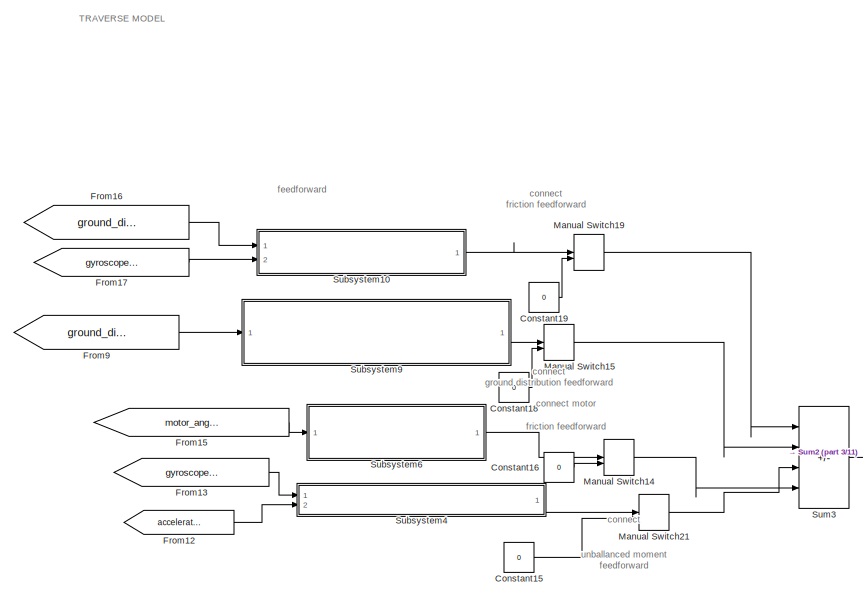
[diagram: root canvas - part 1/11, top center region]
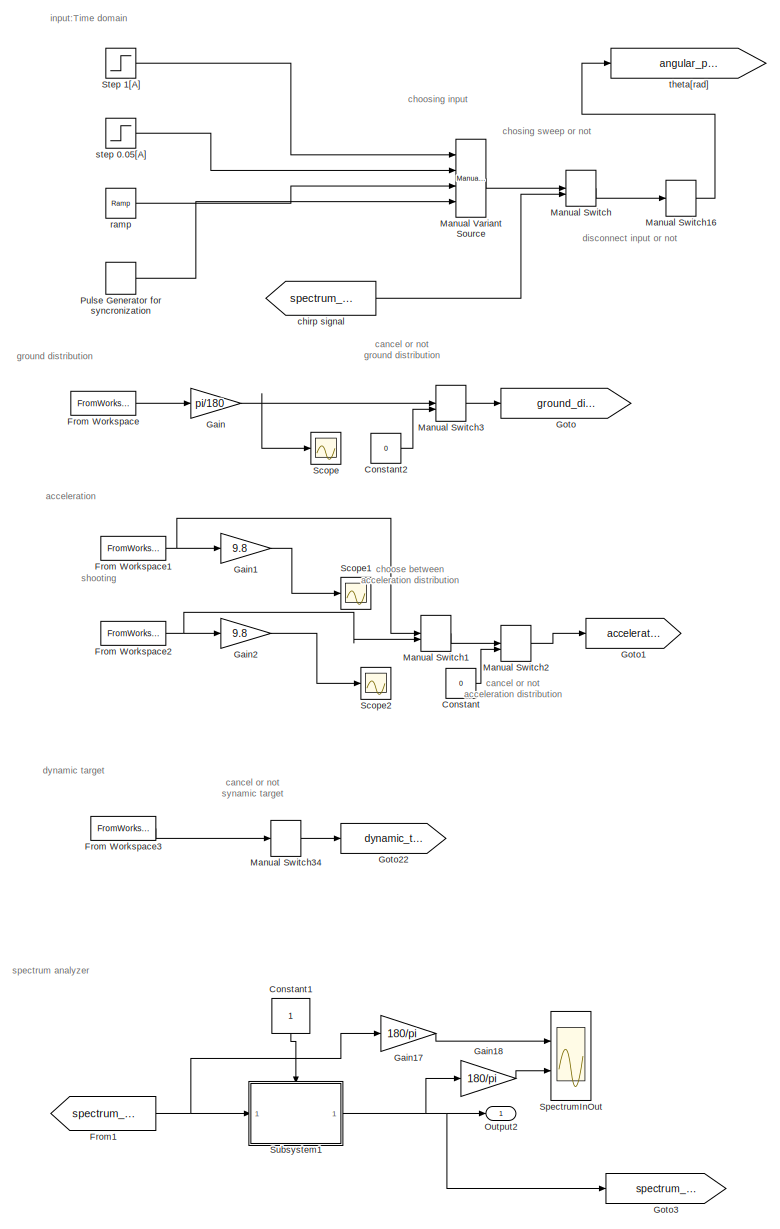
[diagram: root canvas - part 2/11, top left region]
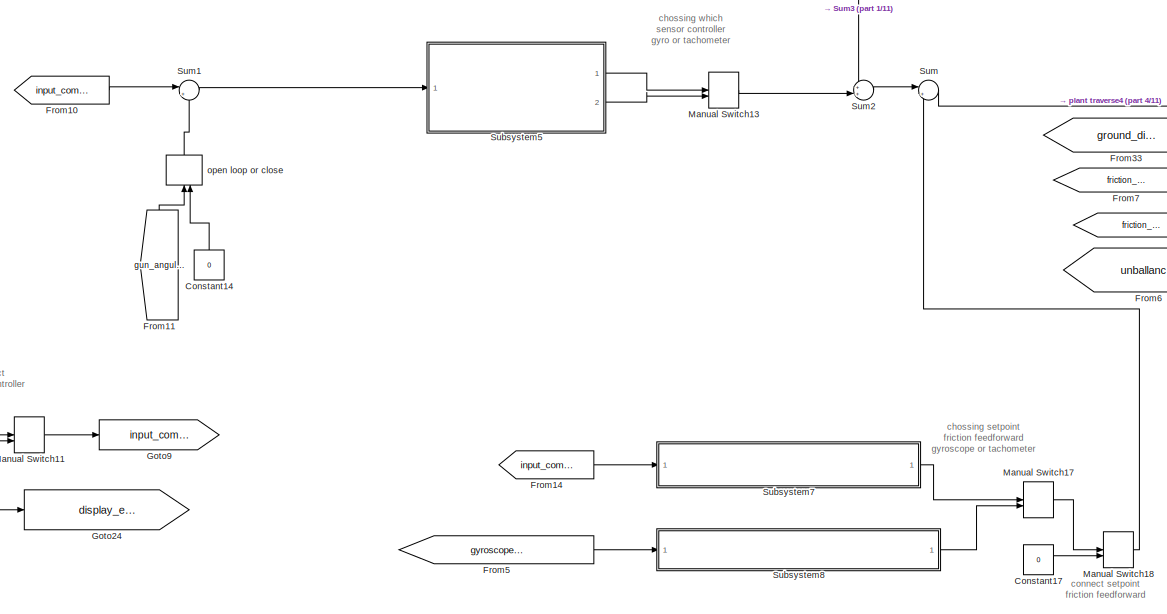
[diagram: root canvas - part 3/11, central region]
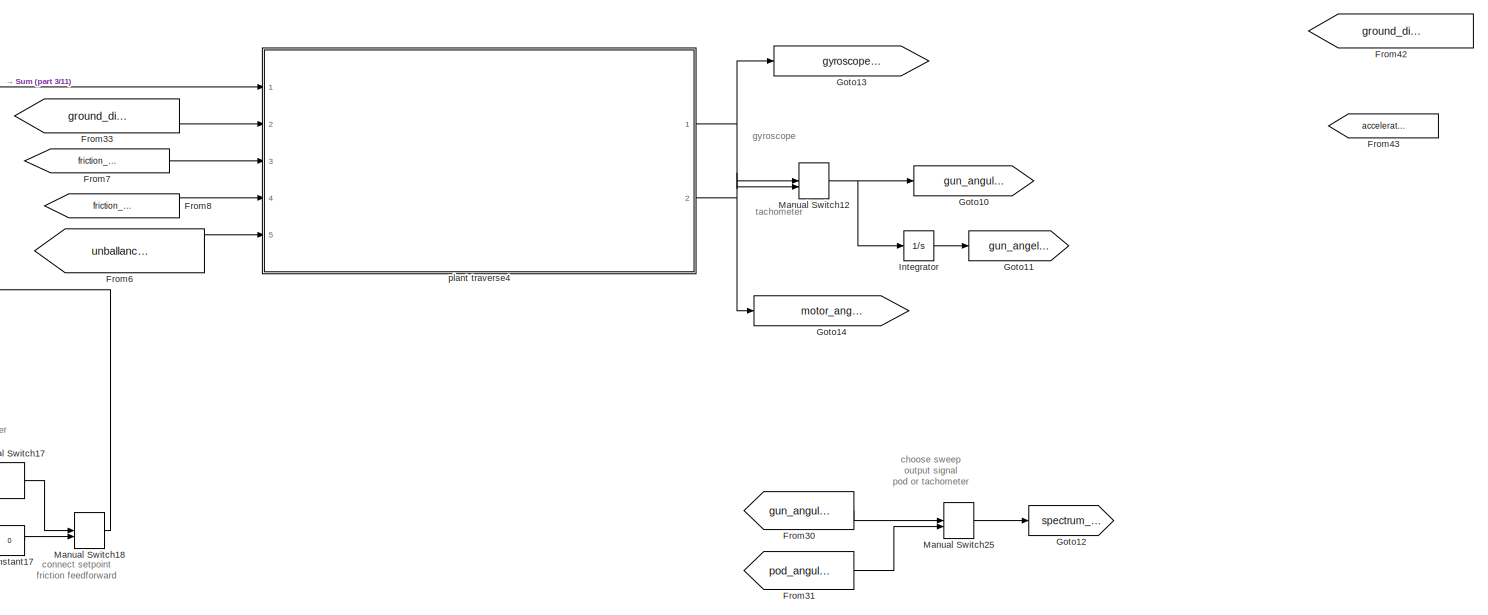
[diagram: root canvas - part 4/11, central region]
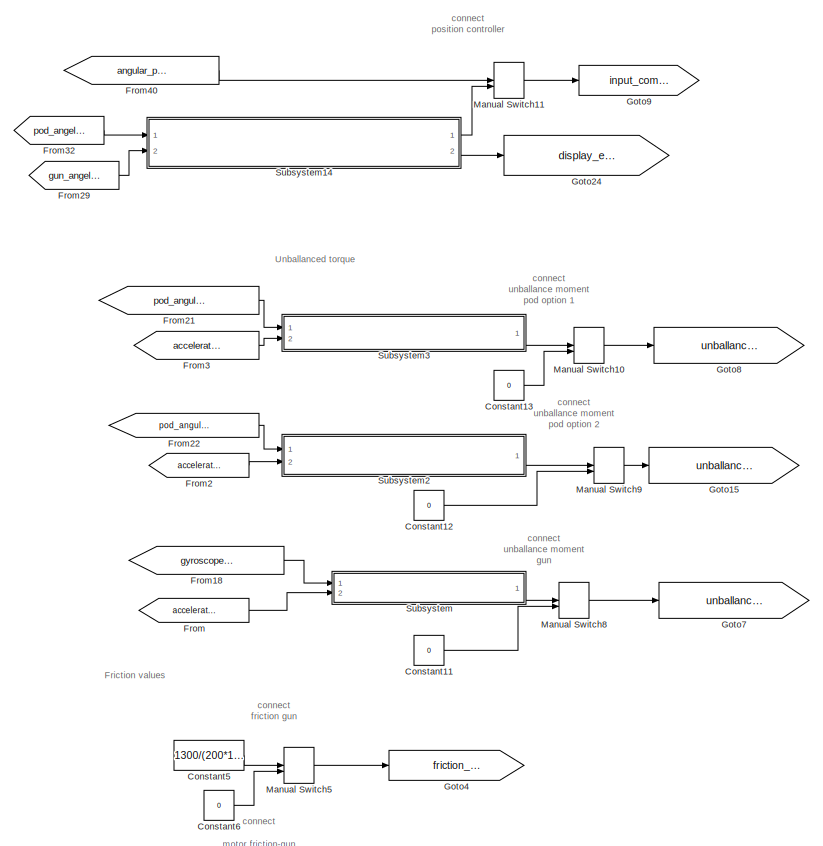
[diagram: root canvas - part 5/11, middle left region]
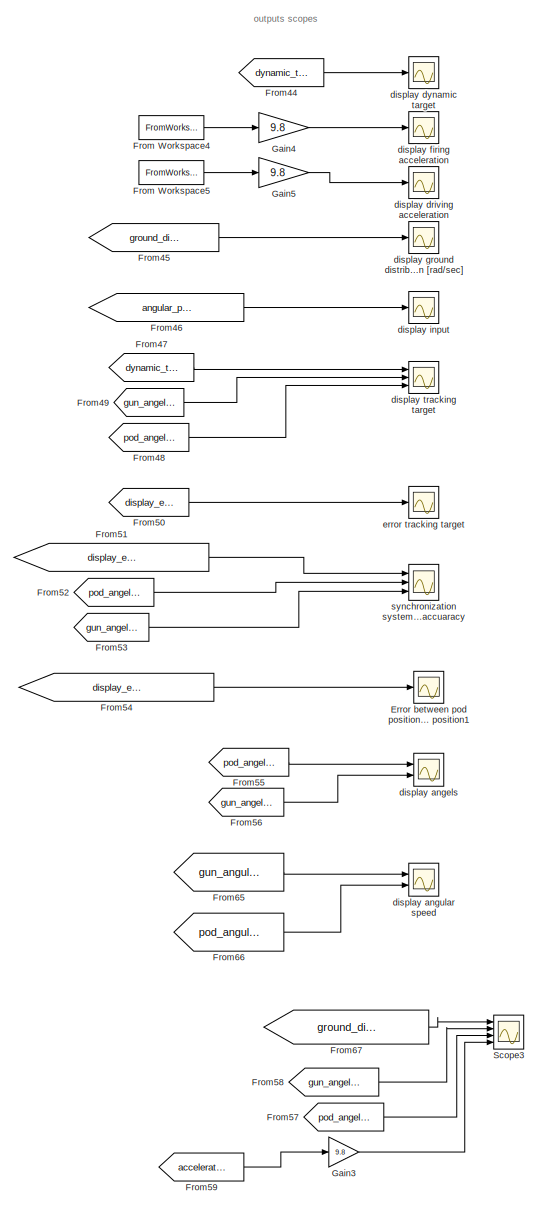
[diagram: root canvas - part 6/11, bottom left region]
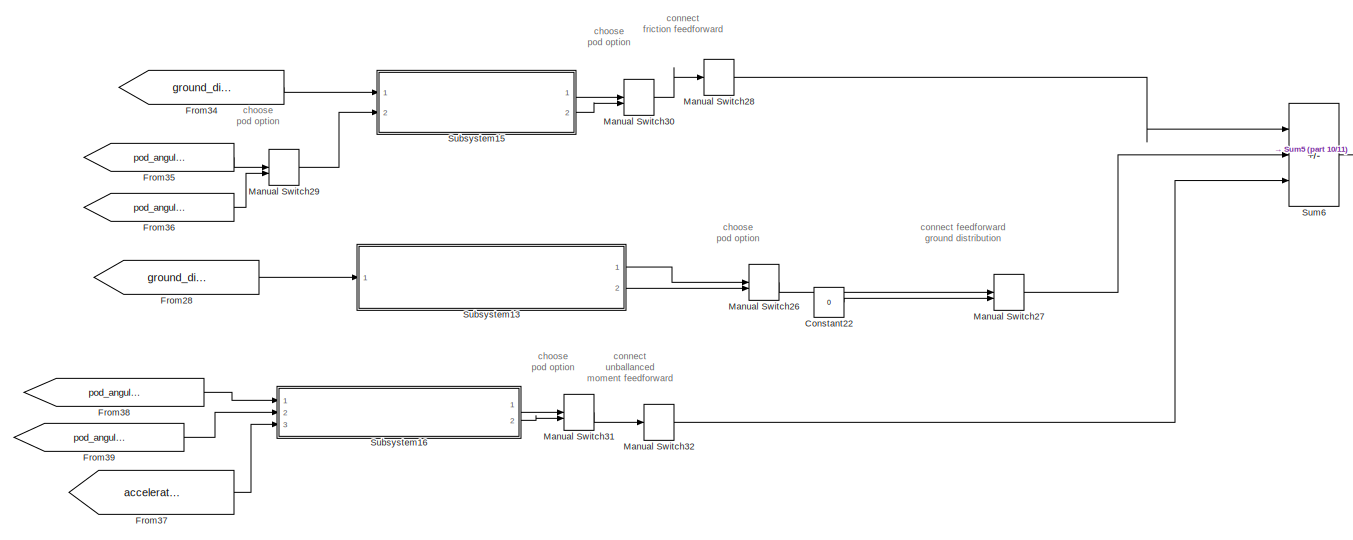
[diagram: root canvas - part 7/11, central region]
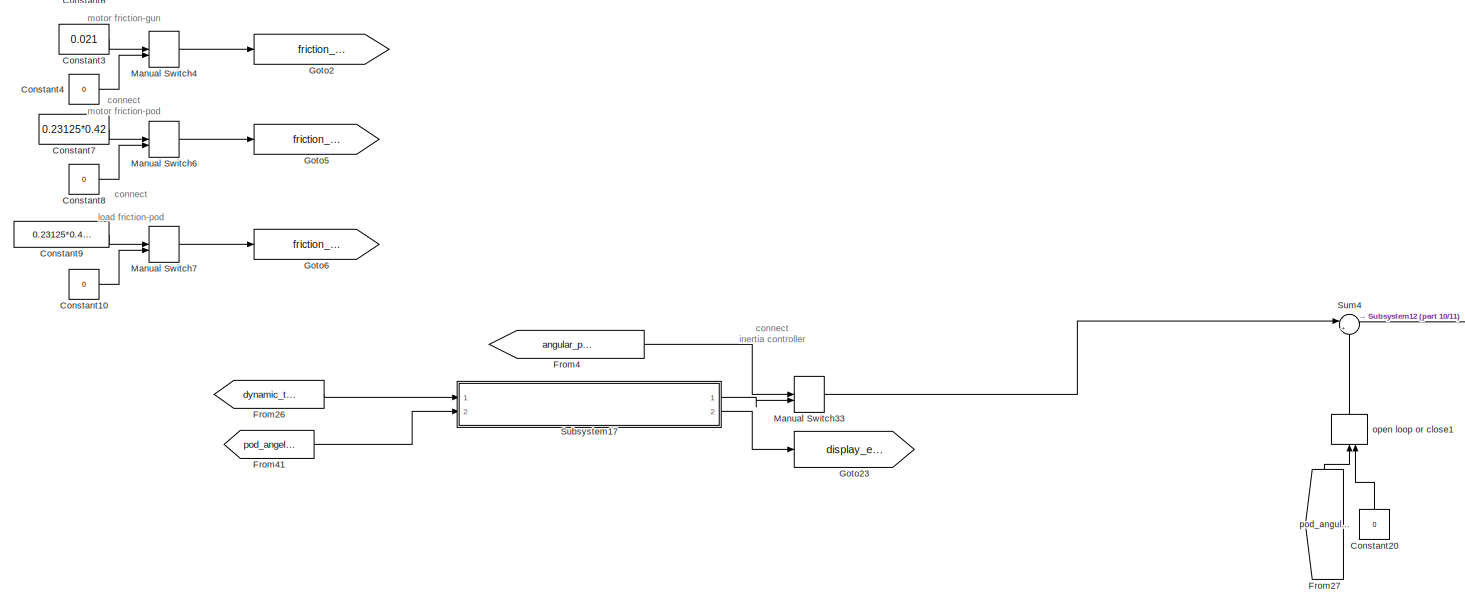
[diagram: root canvas - part 8/11, bottom center region]
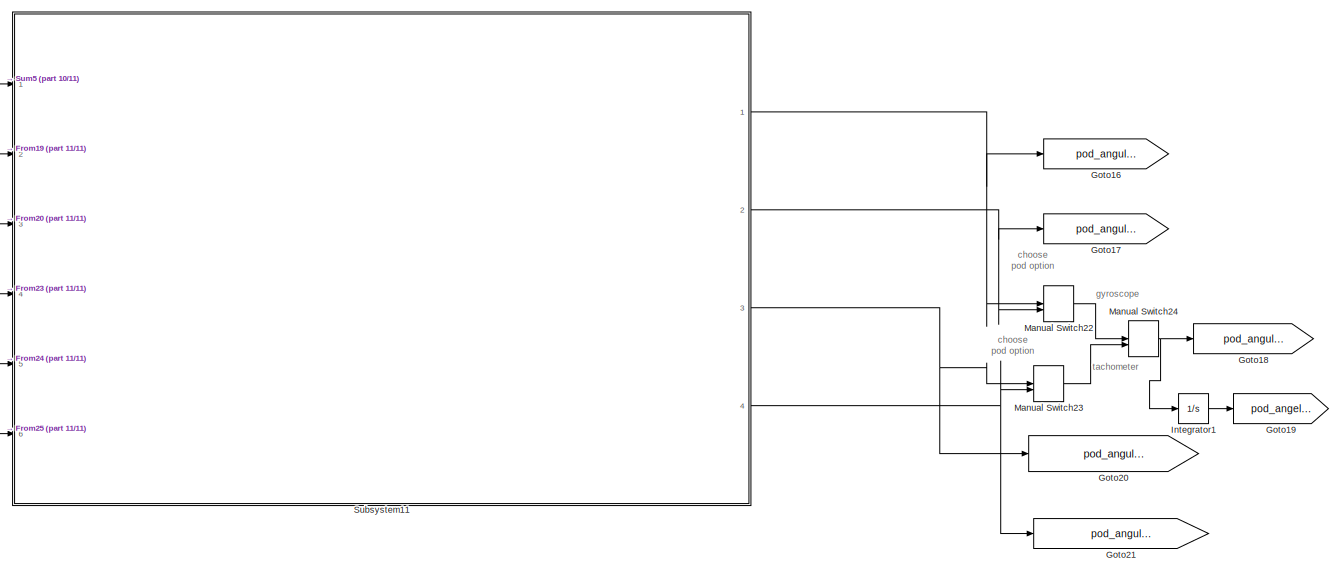
[diagram: root canvas - part 9/11, bottom right region]
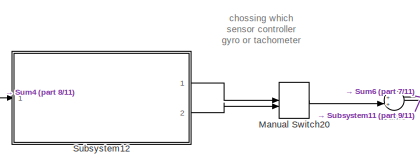
[diagram: root canvas - part 10/11, bottom center region]
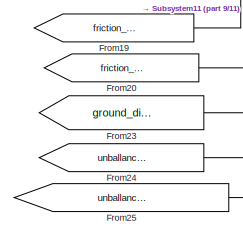
[diagram: root canvas - part 11/11, bottom right region]
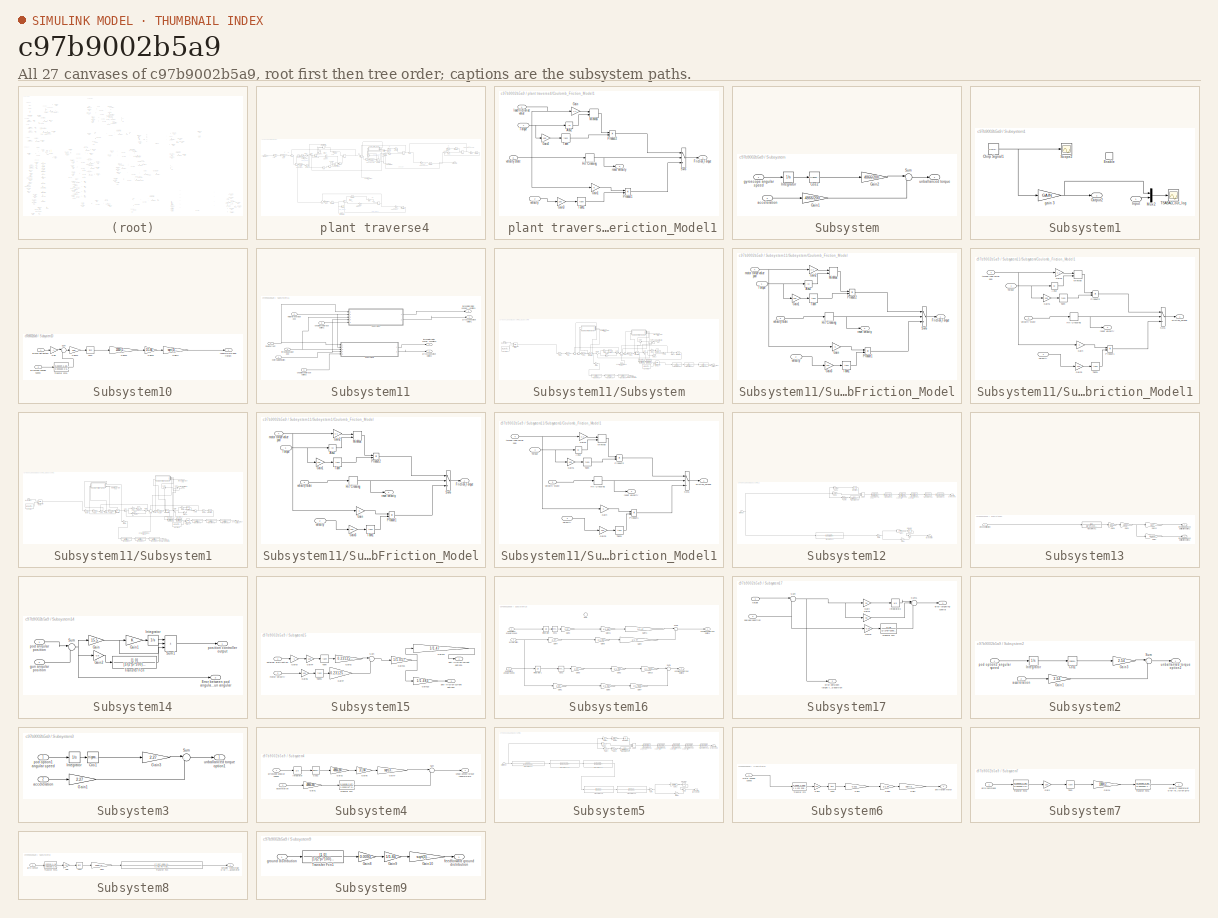
[diagram: thumbnail index - all 27 canvases of the model, root first then tree order]
MODEL slx_c97b9002b5a9
KIND model
CONFIG AbsTol = auto
CONFIG EnableMultiTasking = off
CONFIG FixedStep = auto
CONFIG MaxStep = auto
CONFIG MinStep = auto
CONFIG RelTol = 1e-3
CONFIG SampleTimeConstraint = Unconstrained
CONFIG SolverName = ode45
CONFIG StartTime = 0.0
CONFIG StopTime = 20
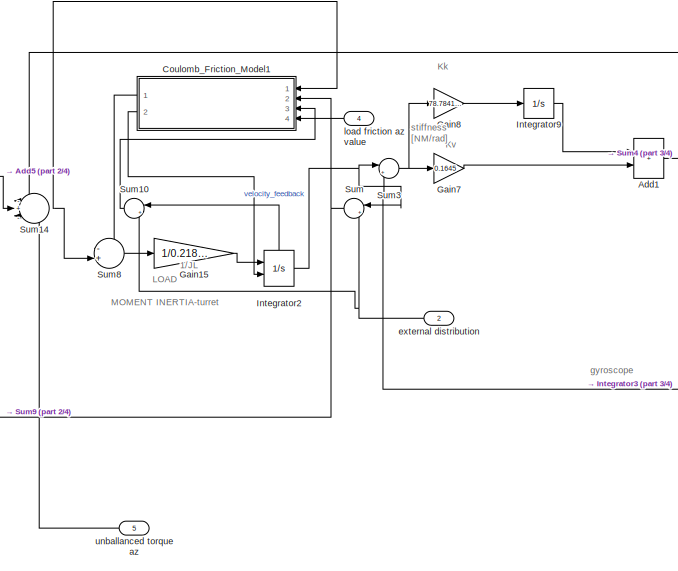
[diagram:  plant traverse4 - part 1/4, top center region]
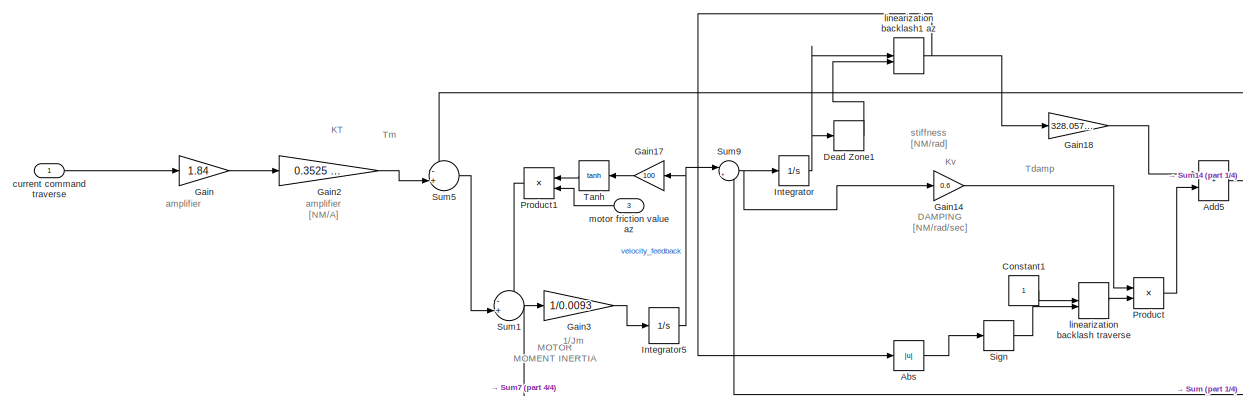
[diagram:  plant traverse4 - part 2/4, top left region]
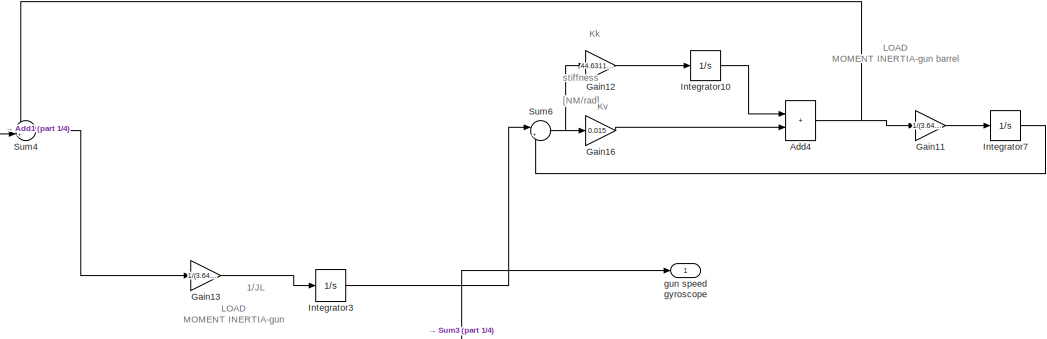
[diagram:  plant traverse4 - part 3/4, top right region]
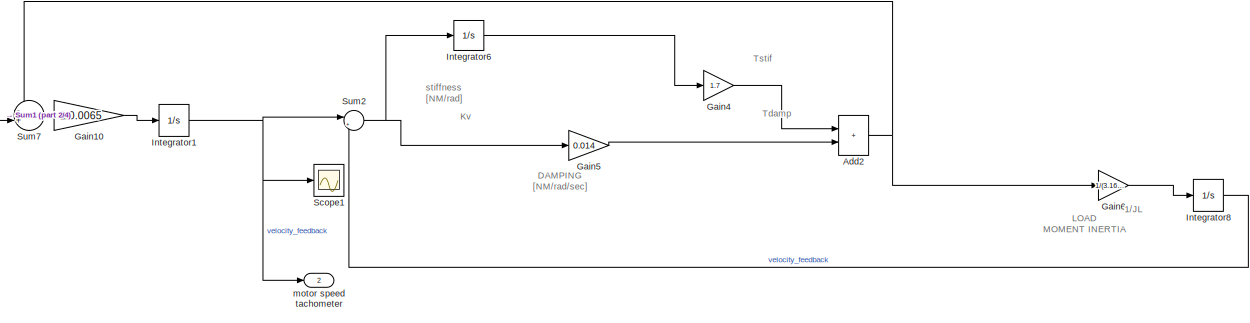
[diagram:  plant traverse4 - part 4/4, bottom center region]
BLOCK [SubSystem]  plant traverse4
  Ports = [5, 2]
  RequestExecContextInheritance = off
BLOCK [Abs]  plant traverse4/Abs
  SaturateOnIntegerOverflow = off
BLOCK [Sum]  plant traverse4/Add1
  IconShape = rectangular
  Ports = [2, 1]
BLOCK [Sum]  plant traverse4/Add2
  IconShape = rectangular
  Ports = [2, 1]
BLOCK [Sum]  plant traverse4/Add4
  IconShape = rectangular
  Ports = [2, 1]
BLOCK [Sum]  plant traverse4/Add5
  IconShape = rectangular
  Ports = [2, 1]
BLOCK [Constant]  plant traverse4/Constant1
BLOCK [SubSystem]  plant traverse4/Coulomb_Friction_Model1
  NameLocation = top
  Ports = [4, 2]
  RequestExecContextInheritance = off
BLOCK [Abs]  plant traverse4/Coulomb_Friction_Model1/Abs2
  SaturateOnIntegerOverflow = off
  ZeroCross = off
BLOCK [Outport]  plant traverse4/Coulomb_Friction_Model1/Friction_Torque
BLOCK [Gain]  plant traverse4/Coulomb_Friction_Model1/Gain
  Gain = 1.1
BLOCK [Gain]  plant traverse4/Coulomb_Friction_Model1/Gain1
BLOCK [Gain]  plant traverse4/Coulomb_Friction_Model1/Gain2
  Gain = 100
BLOCK [Gain]  plant traverse4/Coulomb_Friction_Model1/Gain3
  Gain = 100
BLOCK [HitCross]  plant traverse4/Coulomb_Friction_Model1/Hit Crossing
  Ports = [1, 1]
  ZeroCross = off
BLOCK [MinMax]  plant traverse4/Coulomb_Friction_Model1/MinMax
  Inputs = 2
  Ports = [2, 1]
BLOCK [Product]  plant traverse4/Coulomb_Friction_Model1/Product1
  Ports = [2, 1]
  RndMeth = Zero
BLOCK [Product]  plant traverse4/Coulomb_Friction_Model1/Product2
  Ports = [2, 1]
  RndMeth = Zero
BLOCK [Switch]  plant traverse4/Coulomb_Friction_Model1/Sw6
  Threshold = 0.5
  ZeroCross = off
BLOCK [Trigonometry]  plant traverse4/Coulomb_Friction_Model1/Tanh
  Operator = tanh
  Ports = [1, 1]
BLOCK [Trigonometry]  plant traverse4/Coulomb_Friction_Model1/Tanh1
  Operator = tanh
  Ports = [1, 1]
BLOCK [Inport]  plant traverse4/Coulomb_Friction_Model1/Torque
BLOCK [Inport]  plant traverse4/Coulomb_Friction_Model1/load friction az value
  Port = 4
BLOCK [Outport]  plant traverse4/Coulomb_Friction_Model1/reset velocity
  Port = 2
BLOCK [Inport]  plant traverse4/Coulomb_Friction_Model1/velocity
  Port = 2
BLOCK [Inport]  plant traverse4/Coulomb_Friction_Model1/velocity state
  Port = 3
BLOCK [DeadZone]  plant traverse4/Dead Zone1
  LowerValue = -0.07*10^-3
  SaturateOnIntegerOverflow = off
  UpperValue = 0.07*10^-3
  ZeroCross = off
BLOCK [Gain]  plant traverse4/Gain
  Gain = 1.84
BLOCK [Gain]  plant traverse4/Gain10
  Gain = 1/0.0065
BLOCK [Gain]  plant traverse4/Gain11
  Gain = 1/(3.649668334*10^-3)
BLOCK [Gain]  plant traverse4/Gain12
  Gain = 44.63119054
BLOCK [Gain]  plant traverse4/Gain13
  Gain = 1/(3.649668334*10^-3)
BLOCK [Gain]  plant traverse4/Gain14
  Gain = 0.6
BLOCK [Gain]  plant traverse4/Gain15
  Gain = 1/0.2189801
BLOCK [Gain]  plant traverse4/Gain16
  Gain = 0.015
BLOCK [Gain]  plant traverse4/Gain17
  Gain = 100
BLOCK [Gain]  plant traverse4/Gain18
  Gain = 328.0575777
BLOCK [Gain]  plant traverse4/Gain2
  Gain = 0.3525 /sqrt(3)
BLOCK [Gain]  plant traverse4/Gain3
  Gain = 1/0.0093
BLOCK [Gain]  plant traverse4/Gain4
  Gain = 1.7
BLOCK [Gain]  plant traverse4/Gain5
  Gain = 0.014
BLOCK [Gain]  plant traverse4/Gain6
  Gain = 1/(3.166864961*10^-3)
BLOCK [Gain]  plant traverse4/Gain7
  Gain = 0.1645
BLOCK [Gain]  plant traverse4/Gain8
  Gain = 78.78413144
BLOCK [Integrator]  plant traverse4/Integrator
  Ports = [1, 1]
BLOCK [Integrator]  plant traverse4/Integrator1
  Ports = [1, 1]
  ZeroCross = off
BLOCK [Integrator]  plant traverse4/Integrator10
  Ports = [1, 1]
BLOCK [Integrator]  plant traverse4/Integrator2
  ExternalReset = rising
  Ports = [2, 1, 0, 0, 1]
  ShowStatePort = on
  ZeroCross = off
BLOCK [Integrator]  plant traverse4/Integrator3
  Ports = [1, 1]
  ZeroCross = off
BLOCK [Integrator]  plant traverse4/Integrator5
  Ports = [1, 1]
  ZeroCross = off
BLOCK [Integrator]  plant traverse4/Integrator6
  Ports = [1, 1]
BLOCK [Integrator]  plant traverse4/Integrator7
  Ports = [1, 1]
BLOCK [Integrator]  plant traverse4/Integrator8
  Ports = [1, 1]
  ZeroCross = off
BLOCK [Integrator]  plant traverse4/Integrator9
  Ports = [1, 1]
BLOCK [Product]  plant traverse4/Product
  Ports = [2, 1]
BLOCK [Product]  plant traverse4/Product1
  Ports = [2, 1]
BLOCK [Scope]  plant traverse4/Scope1
  Floating = off
  NumInputPorts = 1
  Ports = [1]
  ScopeSpecificationString = Simulink.scopes.TimeScopeBlockCfg('CurrentConfiguration', extmgr.ConfigurationSet(extmgr.Configuration('Core','General UI',true),extmgr.Configuration('Core','Source UI',true),extmgr.Configuration('Sources','WiredSimulink',true,'DataLoggingVariableName','ScopeData1'),extmgr.Configuration('Visuals','Time Domain',true,'SerializedDisplays',{struct('MinYLimReal','-2.79582','MaxYLimReal','2.53871','YLab...<+1376ch>
BLOCK [Signum]  plant traverse4/Sign
BLOCK [Sum]  plant traverse4/Sum
  Inputs = |+-
  Ports = [2, 1]
BLOCK [Sum]  plant traverse4/Sum1
  Inputs = -+|
  Ports = [2, 1]
  SaturateOnIntegerOverflow = on
BLOCK [Sum]  plant traverse4/Sum10
  Inputs = |+-
  Ports = [2, 1]
BLOCK [Sum]  plant traverse4/Sum14
  Inputs = -+|-
  Ports = [3, 1]
  SaturateOnIntegerOverflow = on
BLOCK [Sum]  plant traverse4/Sum2
  Inputs = |+-
  Ports = [2, 1]
BLOCK [Sum]  plant traverse4/Sum3
  Inputs = |+-
  Ports = [2, 1]
BLOCK [Sum]  plant traverse4/Sum4
  Inputs = -+|
  Ports = [2, 1]
BLOCK [Sum]  plant traverse4/Sum5
  Inputs = -+|
  Ports = [2, 1]
BLOCK [Sum]  plant traverse4/Sum6
  Inputs = |+-
  Ports = [2, 1]
BLOCK [Sum]  plant traverse4/Sum7
  Inputs = -+|
  Ports = [2, 1]
  SaturateOnIntegerOverflow = on
BLOCK [Sum]  plant traverse4/Sum8
  Inputs = -+|
  Ports = [2, 1]
  SaturateOnIntegerOverflow = on
BLOCK [Sum]  plant traverse4/Sum9
  Inputs = |+-
  Ports = [2, 1]
BLOCK [Trigonometry]  plant traverse4/Tanh
  Operator = tanh
  Ports = [1, 1]
BLOCK [Inport]  plant traverse4/current command traverse
BLOCK [Inport]  plant traverse4/external distribution
  Port = 2
BLOCK [Outport]  plant traverse4/gun speed gyroscope
BLOCK [ManualSwitch]  plant traverse4/linearization backlash traverse
  CurrentSetting = 0
BLOCK [ManualSwitch]  plant traverse4/linearization backlash1 az
  CurrentSetting = 0
BLOCK [Inport]  plant traverse4/load friction az value
  Port = 4
BLOCK [Inport]  plant traverse4/motor friction value az
  Port = 3
BLOCK [Outport]  plant traverse4/motor speed tachometer
  Port = 2
BLOCK [Inport]  plant traverse4/unballanced torque az
  Port = 5
BLOCK [Scope]  synchronization system stability accuaracy
  Floating = off
  NumInputPorts = 3
  Ports = [3]
  ScopeSpecificationString = Simulink.scopes.TimeScopeBlockCfg('CurrentConfiguration', extmgr.ConfigurationSet(extmgr.Configuration('Core','General UI',true),extmgr.Configuration('Core','Source UI',true),extmgr.Configuration('Sources','WiredSimulink',true,'DataLoggingVariableName','ScopeData10'),extmgr.Configuration('Visuals','Time Domain',true,'SerializedDisplays',{struct('MinYLimReal','-0.0003','MaxYLimReal','0.00025','YLab...<+3036ch>
BLOCK [Constant] Constant
  SampleTime = -1
  Value = 0
BLOCK [Constant] Constant1
  AttributesFormatString = 1 - START\n0 -STOP\ninternal spectrum
  NameLocation = left
  OpenFcn = if get_param(gcbh,'value')-48 set_param(gcbh,'value','0','backgroundcolor','red');\nelse set_param(gcbh,'value','1','backgroundcolor','green');                       \nend
  OutDataTypeStr = boolean
BLOCK [Constant] Constant10
  SampleTime = 0
  Value = 0
BLOCK [Constant] Constant11
  SampleTime = 0
  Value = 0
BLOCK [Constant] Constant12
  SampleTime = 0
  Value = 0
BLOCK [Constant] Constant13
  SampleTime = 0
  Value = 0
BLOCK [Constant] Constant14
  NameLocation = right
  SampleTime = 0
  Value = 0
BLOCK [Constant] Constant15
  SampleTime = 0
  Value = 0
BLOCK [Constant] Constant16
  SampleTime = 0
  Value = 0
BLOCK [Constant] Constant17
  SampleTime = 0
  Value = 0
BLOCK [Constant] Constant18
  SampleTime = 0
  Value = 0
BLOCK [Constant] Constant19
  SampleTime = 0
  Value = 0
BLOCK [Constant] Constant2
  SampleTime = -1
  Value = 0
BLOCK [Constant] Constant20
  NameLocation = right
  SampleTime = 0
  Value = 0
BLOCK [Constant] Constant22
  SampleTime = 0
  Value = 0
BLOCK [Constant] Constant3
  SampleTime = 0
  Value = 0.021
BLOCK [Constant] Constant4
  SampleTime = 0
  Value = 0
BLOCK [Constant] Constant5
  SampleTime = 0
  Value = 1300/(200*1.1)
BLOCK [Constant] Constant6
  SampleTime = 0
  Value = 0
BLOCK [Constant] Constant7
  SampleTime = 0
  Value = 0.23125*0.42
BLOCK [Constant] Constant8
  SampleTime = 0
  Value = 0
BLOCK [Constant] Constant9
  SampleTime = 0
  Value = 0.23125*0.42*0.5
BLOCK [Scope] Error between pod position to gun position1
  Floating = off
  NumInputPorts = 1
  Ports = [1]
  ScopeSpecificationString = Simulink.scopes.TimeScopeBlockCfg('CurrentConfiguration', extmgr.ConfigurationSet(extmgr.Configuration('Core','General UI',true),extmgr.Configuration('Core','Source UI',true),extmgr.Configuration('Sources','WiredSimulink',true,'DataLoggingVariableName','ScopeData2'),extmgr.Configuration('Visuals','Time Domain',true,'SerializedDisplays',{struct('MinYLimReal','-0.00026','MaxYLimReal','0.00027','YLab...<+1511ch>
BLOCK [From] From
  GotoTag = acceleration_az
BLOCK [FromWorkspace] From Workspace
  Interpolate = off
  OutputAfterFinalValue = Setting to zero
  SampleTime = ts3/3
  VariableName = trdist
  ZeroCross = off
BLOCK [FromWorkspace] From Workspace1
  Interpolate = off
  OutputAfterFinalValue = Setting to zero
  SampleTime = ts3/3
  VariableName = gy
  ZeroCross = off
BLOCK [FromWorkspace] From Workspace2
  Interpolate = off
  OutputAfterFinalValue = Setting to zero
  SampleTime = ts3/9
  VariableName = firegy
  ZeroCross = off
BLOCK [FromWorkspace] From Workspace3
  Interpolate = off
  OutputAfterFinalValue = Setting to zero
  SampleTime = 5*ts3
  VariableName = targetx
  ZeroCross = off
BLOCK [FromWorkspace] From Workspace4
  Interpolate = off
  OutputAfterFinalValue = Setting to zero
  SampleTime = ts3/9
  VariableName = firegz
  ZeroCross = off
BLOCK [FromWorkspace] From Workspace5
  Interpolate = off
  OutputAfterFinalValue = Setting to zero
  SampleTime = ts3/3
  VariableName = gz
  ZeroCross = off
BLOCK [From] From1
  GotoTag = spectrum_back
BLOCK [From] From10
  GotoTag = input_command_az
BLOCK [From] From11
  GotoTag = gun_angular_speed_az
  NameLocation = left
BLOCK [From] From12
  GotoTag = acceleration_az
BLOCK [From] From13
  GotoTag = gyroscope_angular_speed_az
BLOCK [From] From14
  GotoTag = input_command_az
BLOCK [From] From15
  GotoTag = motor_angular_speed_az
BLOCK [From] From16
  GotoTag = ground_distribution_az
  NameLocation = top
BLOCK [From] From17
  GotoTag = gyroscope_angular_speed_az
BLOCK [From] From18
  GotoTag = gyroscope_angular_speed_az
BLOCK [From] From19
  GotoTag = friction_gear_motor_pod
BLOCK [From] From2
  GotoTag = acceleration_az
BLOCK [From] From20
  GotoTag = friction_gear_load_pod
BLOCK [From] From21
  GotoTag = pod_angular_speed_1_az
BLOCK [From] From22
  GotoTag = pod_angular_speed_2_az
BLOCK [From] From23
  GotoTag = ground_distribution_az
  NameLocation = top
BLOCK [From] From24
  GotoTag = unballanced_torque_pod1_az
BLOCK [From] From25
  GotoTag = unballanced_torque_pod2_az
BLOCK [From] From26
  GotoTag = dynamic_target
BLOCK [From] From27
  GotoTag = pod_angular_speed_az
  NameLocation = left
BLOCK [From] From28
  GotoTag = ground_distribution_az
  NameLocation = top
BLOCK [From] From29
  GotoTag = gun_angel_az
BLOCK [From] From3
  GotoTag = acceleration_az
BLOCK [From] From30
  GotoTag = gun_angular_speed_az
  NameLocation = top
BLOCK [From] From31
  GotoTag = pod_angular_speed_az
  NameLocation = top
BLOCK [From] From32
  GotoTag = pod_angel_az
BLOCK [From] From33
  GotoTag = ground_distribution_az
  NameLocation = top
BLOCK [From] From34
  GotoTag = ground_distribution_az
  NameLocation = top
BLOCK [From] From35
  GotoTag = pod_angular_speed_motor1_az
BLOCK [From] From36
  GotoTag = pod_angular_speed_motor2_az
BLOCK [From] From37
  GotoTag = acceleration_az
BLOCK [From] From38
  GotoTag = pod_angular_speed_1_az
BLOCK [From] From39
  GotoTag = pod_angular_speed_2_az
BLOCK [From] From4
  GotoTag = angular_position_or_speed_az
BLOCK [From] From40
  GotoTag = angular_position_or_speed_az
BLOCK [From] From41
  GotoTag = pod_angel_az
BLOCK [From] From42
  GotoTag = ground_distribution_az
  NameLocation = top
BLOCK [From] From43
  GotoTag = acceleration_az
BLOCK [From] From44
  GotoTag = dynamic_target
BLOCK [From] From45
  GotoTag = ground_distribution_az
BLOCK [From] From46
  GotoTag = angular_position_or_speed_az
BLOCK [From] From47
  GotoTag = dynamic_target
BLOCK [From] From48
  GotoTag = pod_angel_az
BLOCK [From] From49
  GotoTag = gun_angel_az
BLOCK [From] From5
  GotoTag = gyroscope_angular_speed_az
BLOCK [From] From50
  GotoTag = display_error
BLOCK [From] From51
  GotoTag = display_error_synchronization
BLOCK [From] From52
  GotoTag = pod_angel_az
BLOCK [From] From53
  GotoTag = gun_angel_az
BLOCK [From] From54
  GotoTag = display_error_synchronization
BLOCK [From] From55
  GotoTag = pod_angel_az
  NameLocation = left
BLOCK [From] From56
  GotoTag = gun_angel_az
BLOCK [From] From57
  GotoTag = pod_angel_az
BLOCK [From] From58
  GotoTag = gun_angel_az
BLOCK [From] From59
  GotoTag = acceleration_az
BLOCK [From] From6
  GotoTag = unballanced_torque_gun_az
  NameLocation = top
BLOCK [From] From65
  GotoTag = gun_angular_speed_az
  NameLocation = top
BLOCK [From] From66
  GotoTag = pod_angular_speed_az
  NameLocation = top
BLOCK [From] From67
  GotoTag = ground_distribution_az
  NameLocation = top
BLOCK [From] From7
  GotoTag = friction_gear_motor_gun_az
  NameLocation = top
BLOCK [From] From8
  GotoTag = friction_gear_load_gun_az
  NameLocation = top
BLOCK [From] From9
  GotoTag = ground_distribution_az
  NameLocation = top
BLOCK [Gain] Gain
  Gain = pi/180
BLOCK [Gain] Gain1
  Gain = 9.8
BLOCK [Gain] Gain17
  Gain = 180/pi
BLOCK [Gain] Gain18
  Gain = 180/pi
BLOCK [Gain] Gain2
  Gain = 9.8
BLOCK [Gain] Gain3
  Gain = 9.8
BLOCK [Gain] Gain4
  Gain = 9.8
BLOCK [Gain] Gain5
  Gain = 9.8
BLOCK [Goto] Goto
  GotoTag = ground_distribution_az
BLOCK [Goto] Goto1
  GotoTag = acceleration_az
BLOCK [Goto] Goto10
  GotoTag = gun_angular_speed_az
BLOCK [Goto] Goto11
  GotoTag = gun_angel_az
BLOCK [Goto] Goto12
  GotoTag = spectrum_back
BLOCK [Goto] Goto13
  GotoTag = gyroscope_angular_speed_az
BLOCK [Goto] Goto14
  GotoTag = motor_angular_speed_az
BLOCK [Goto] Goto15
  GotoTag = unballanced_torque_pod2_az
BLOCK [Goto] Goto16
  GotoTag = pod_angular_speed_1_az
BLOCK [Goto] Goto17
  GotoTag = pod_angular_speed_2_az
BLOCK [Goto] Goto18
  GotoTag = pod_angular_speed_az
BLOCK [Goto] Goto19
  GotoTag = pod_angel_az
BLOCK [Goto] Goto2
  GotoTag = friction_gear_motor_gun_az
BLOCK [Goto] Goto20
  GotoTag = pod_angular_speed_motor1_az
BLOCK [Goto] Goto21
  GotoTag = pod_angular_speed_motor2_az
BLOCK [Goto] Goto22
  GotoTag = dynamic_target
BLOCK [Goto] Goto23
  GotoTag = display_error
BLOCK [Goto] Goto24
  GotoTag = display_error_synchronization
BLOCK [Goto] Goto3
  GotoTag = spectrum_signal
BLOCK [Goto] Goto4
  GotoTag = friction_gear_load_gun_az
BLOCK [Goto] Goto5
  GotoTag = friction_gear_motor_pod
BLOCK [Goto] Goto6
  GotoTag = friction_gear_load_pod
BLOCK [Goto] Goto7
  GotoTag = unballanced_torque_gun_az
BLOCK [Goto] Goto8
  GotoTag = unballanced_torque_pod1_az
BLOCK [Goto] Goto9
  GotoTag = input_command_az
BLOCK [Integrator] Integrator
  Ports = [1, 1]
  ZeroCross = off
BLOCK [Integrator] Integrator1
  Ports = [1, 1]
  ZeroCross = off
BLOCK [ManualSwitch] Manual Switch
BLOCK [ManualSwitch] Manual Switch1
  CurrentSetting = 0
BLOCK [ManualSwitch] Manual Switch10
  CurrentSetting = 0
BLOCK [ManualSwitch] Manual Switch11
BLOCK [ManualSwitch] Manual Switch12
BLOCK [ManualSwitch] Manual Switch13
BLOCK [ManualSwitch] Manual Switch14
BLOCK [ManualSwitch] Manual Switch15
BLOCK [ManualSwitch] Manual Switch16
  CurrentSetting = 0
BLOCK [ManualSwitch] Manual Switch17
BLOCK [ManualSwitch] Manual Switch18
BLOCK [ManualSwitch] Manual Switch19
BLOCK [ManualSwitch] Manual Switch2
  CurrentSetting = 0
BLOCK [ManualSwitch] Manual Switch20
BLOCK [ManualSwitch] Manual Switch21
BLOCK [ManualSwitch] Manual Switch22
BLOCK [ManualSwitch] Manual Switch23
BLOCK [ManualSwitch] Manual Switch24
BLOCK [ManualSwitch] Manual Switch25
BLOCK [ManualSwitch] Manual Switch26
BLOCK [ManualSwitch] Manual Switch27
  CurrentSetting = 0
BLOCK [ManualSwitch] Manual Switch28
BLOCK [ManualSwitch] Manual Switch29
BLOCK [ManualSwitch] Manual Switch3
BLOCK [ManualSwitch] Manual Switch30
BLOCK [ManualSwitch] Manual Switch31
BLOCK [ManualSwitch] Manual Switch32
BLOCK [ManualSwitch] Manual Switch33
  CurrentSetting = 0
BLOCK [ManualSwitch] Manual Switch34
BLOCK [ManualSwitch] Manual Switch4
BLOCK [ManualSwitch] Manual Switch5
BLOCK [ManualSwitch] Manual Switch6
BLOCK [ManualSwitch] Manual Switch7
BLOCK [ManualSwitch] Manual Switch8
  CurrentSetting = 0
BLOCK [ManualSwitch] Manual Switch9
  CurrentSetting = 0
BLOCK [Reference] Manual Variant Source  REF=simulink/Signal
Routing/Manual
Variant Source
  Ports = [4, 1]
  SourceBlock = simulink/Signal\nRouting/Manual\nVariant Source
  SourceProductBaseCode = SL
  SourceType = ManualVariantSource
BLOCK [Outport] Output2
BLOCK [DiscretePulseGenerator] Pulse Generator for syncronization
  Period = 10
  Ports = [0, 1]
  PulseType = Time based
  PulseWidth = 50
BLOCK [Scope] Scope
  Floating = off
  NumInputPorts = 1
  Ports = [1]
  ScopeSpecificationString = Simulink.scopes.TimeScopeBlockCfg('CurrentConfiguration', extmgr.ConfigurationSet(extmgr.Configuration('Core','General UI',true),extmgr.Configuration('Core','Source UI',true),extmgr.Configuration('Sources','WiredSimulink',true,'DataLoggingVariableName','ScopeData1'),extmgr.Configuration('Visuals','Time Domain',true,'TimeAxisLabels','All','SerializedDisplays',{struct('MinYLimReal','-0.18663','MaxYL...<+2328ch>
BLOCK [Scope] Scope1
  Floating = off
  NumInputPorts = 1
  Ports = [1]
  ScopeSpecificationString = Simulink.scopes.TimeScopeBlockCfg('CurrentConfiguration', extmgr.ConfigurationSet(extmgr.Configuration('Core','General UI',true),extmgr.Configuration('Core','Source UI',true),extmgr.Configuration('Sources','WiredSimulink',true,'DataLoggingVariableName','ScopeData2'),extmgr.Configuration('Visuals','Time Domain',true,'TimeAxisLabels','All','SerializedDisplays',{struct('MinYLimReal','-29.88957','MaxY...<+2323ch>
BLOCK [Scope] Scope2
  Floating = off
  NumInputPorts = 1
  Ports = [1]
  ScopeSpecificationString = Simulink.scopes.TimeScopeBlockCfg('CurrentConfiguration', extmgr.ConfigurationSet(extmgr.Configuration('Core','General UI',true),extmgr.Configuration('Core','Source UI',true),extmgr.Configuration('Sources','WiredSimulink',true),extmgr.Configuration('Visuals','Time Domain',true,'TimeAxisLabels','All','SerializedDisplays',{struct('MinYLimReal','-186.14258','MaxYLimReal','144.0332','YLabelReal','a [m...<+2317ch>
BLOCK [Scope] Scope3
  Floating = off
  NumInputPorts = 4
  Ports = [4]
  ScopeSpecificationString = Simulink.scopes.TimeScopeBlockCfg('CurrentConfiguration', extmgr.ConfigurationSet(extmgr.Configuration('Core','General UI',true),extmgr.Configuration('Core','Source UI',true),extmgr.Configuration('Sources','WiredSimulink',true,'DataLoggingVariableName','ScopeData15'),extmgr.Configuration('Visuals','Time Domain',true,'SerializedDisplays',{struct('MinYLimReal','-1.00000','MaxYLimReal','1.00000','YLa...<+4128ch>
BLOCK [Scope] SpectrumInOut
  Floating = off
  NumInputPorts = 2
  Ports = [2]
  ScopeSpecificationString = Simulink.scopes.TimeScopeBlockCfg('CurrentConfiguration', extmgr.ConfigurationSet(extmgr.Configuration('Core','General UI',true),extmgr.Configuration('Core','Source UI',true),extmgr.Configuration('Sources','WiredSimulink',true,'DataLoggingVariableName','ScopeData4','SampleTime','0.001','DataLoggingSaveFormat','StructureWithTime'),extmgr.Configuration('Visuals','Time Domain',true,'SerializedDisplay...<+2447ch>
BLOCK [Step] Step 1[A]
  SampleTime = 0
  ZeroCross = off
BLOCK [SubSystem] Subsystem
  Ports = [2, 1]
  RequestExecContextInheritance = off
BLOCK [Trigonometry] Subsystem/Cos2
  Ports = [1, 1]
BLOCK [Gain] Subsystem/Gain1
  Gain = 4866/200
BLOCK [Gain] Subsystem/Gain2
  Gain = 4866/200
BLOCK [Integrator] Subsystem/Integrator
  Ports = [1, 1]
  ZeroCross = off
BLOCK [Sum] Subsystem/Sum
  Inputs = |++
  Ports = [2, 1]
BLOCK [Inport] Subsystem/acceleration
  Port = 2
BLOCK [Inport] Subsystem/gyroscope angular speed
BLOCK [Outport] Subsystem/unballanced torque
BLOCK [SubSystem] Subsystem1
  Ports = [1, 1, 1]
  RequestExecContextInheritance = off
BLOCK [Reference] Subsystem1/Chirp Signal1  REF=simulink/Sources/Chirp Signal
  Ports = [0, 1]
  SourceBlock = simulink/Sources/Chirp Signal
  SourceProductBaseCode = SL
  SourceType = chirp
BLOCK [EnablePort] Subsystem1/Enable
  Ports = []
  StatesWhenEnabling = reset
BLOCK [Inport] Subsystem1/Input
BLOCK [Mux] Subsystem1/Mux2
  DisplayOption = bar
  Inputs = 2
  Ports = [2, 1]
BLOCK [Outport] Subsystem1/Output2
BLOCK [Scope] Subsystem1/Scope2
  Floating = off
  NumInputPorts = 1
  Ports = [1]
  ScopeSpecificationString = Simulink.scopes.TimeScopeBlockCfg('CurrentConfiguration', extmgr.ConfigurationSet(extmgr.Configuration('Core','General UI',true),extmgr.Configuration('Core','Source UI',true),extmgr.Configuration('Sources','WiredSimulink',true,'DataLoggingVariableName','ScopeData3'),extmgr.Configuration('Visuals','Time Domain',true,'SerializedDisplays',{struct('MinYLimReal','-1.25','MaxYLimReal','1.25','YLabelReal...<+1427ch>
BLOCK [Scope] Subsystem1/TSABAD_out_log
  Floating = off
  NumInputPorts = 1
  Ports = [1]
  ScopeSpecificationString = Simulink.scopes.TimeScopeBlockCfg('CurrentConfiguration', extmgr.ConfigurationSet(extmgr.Configuration('Core','General UI',true),extmgr.Configuration('Core','Source UI',true),extmgr.Configuration('Sources','WiredSimulink',true,'DataLogging',true,'DataLoggingVariableName','TSABAD_out_log','DataLoggingSaveFormat','Array','DataLoggingDecimation','1','DataLoggingDecimateData',true,'SampleTime','0.001'...<+1754ch>
BLOCK [Gain] Subsystem1/gain 3
  Gain = GAIN
  OutDataTypeStr = Inherit: Same as input
  ParamDataTypeStr = Inherit: Same as input
  SampleTime = ts3
  SaturateOnIntegerOverflow = on
BLOCK [SubSystem] Subsystem10
  Ports = [2, 1]
  RequestExecContextInheritance = off
BLOCK [Gain] Subsystem10/Gain
  Gain = -1
BLOCK [Gain] Subsystem10/Gain14
  Gain = sqrt(3)/0.3525
BLOCK [Gain] Subsystem10/Gain15
  Gain = 1300/(200*1.1)
BLOCK [Gain] Subsystem10/Gain16
  Gain = 1/1.84
BLOCK [Gain] Subsystem10/Gain19
  Gain = 100
BLOCK [Sum] Subsystem10/Sum
  Inputs = |++
  Ports = [2, 1]
BLOCK [Trigonometry] Subsystem10/Tanh
  Operator = tanh
  Ports = [1, 1]
BLOCK [TransferFcn] Subsystem10/Transfer Fcn1
  Denominator = [0.003183 2.538  528.2 3.284*10^4 5.857*10^6]
  Numerator = [0.02219 1.182 1026 1.42*10^4 5.857*10^6]
BLOCK [Outport] Subsystem10/feedforward load friction
BLOCK [Inport] Subsystem10/ground distribution
BLOCK [Inport] Subsystem10/gyroscope angular speed
  Port = 2
BLOCK [SubSystem] Subsystem11
  Ports = [6, 4]
  RequestExecContextInheritance = off
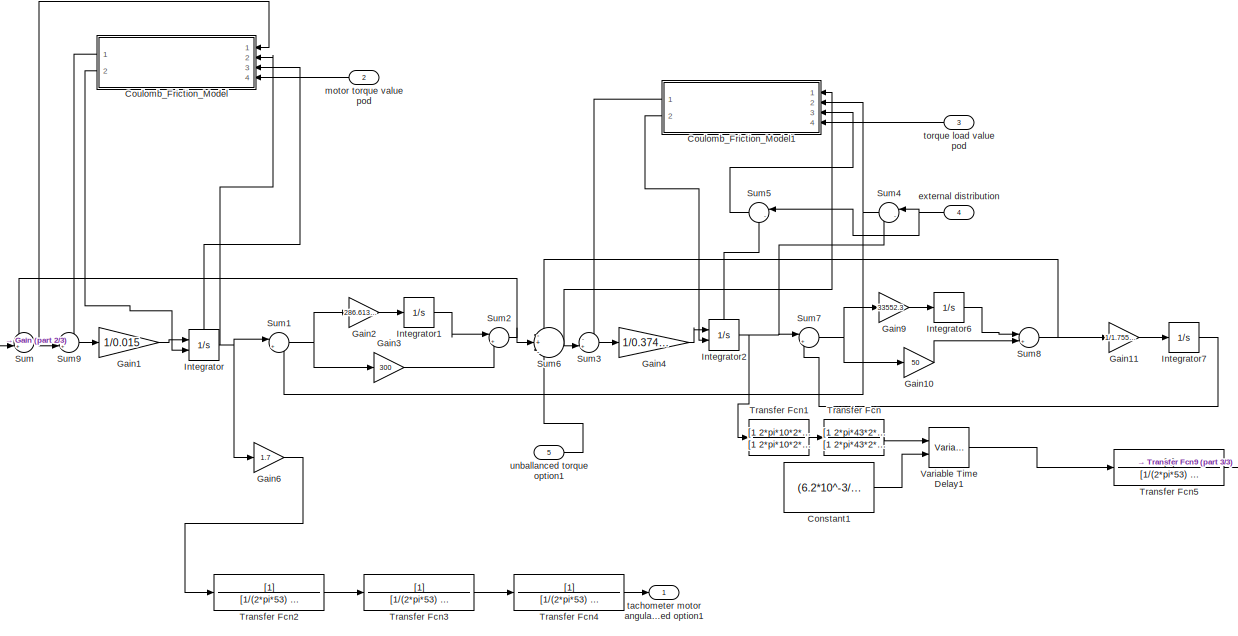
[diagram: Subsystem11/Subsystem - part 1/3, center side, full height]
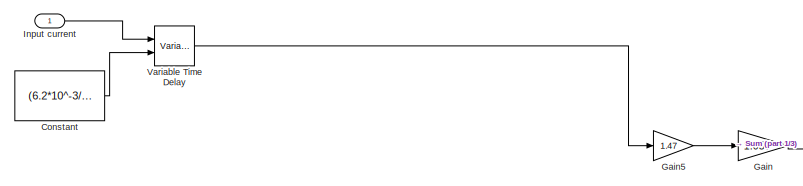
[diagram: Subsystem11/Subsystem - part 2/3, middle left region]
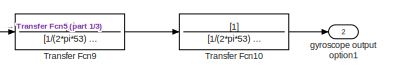
[diagram: Subsystem11/Subsystem - part 3/3, bottom right region]
BLOCK [SubSystem] Subsystem11/Subsystem
  Ports = [5, 2]
  RequestExecContextInheritance = off
BLOCK [Constant] Subsystem11/Subsystem/Constant
  SampleTime = -1
  Value = (6.2*10^-3/1.9)*1.2
BLOCK [Constant] Subsystem11/Subsystem/Constant1
  SampleTime = -1
  Value = (6.2*10^-3/1.9)*0.8
BLOCK [SubSystem] Subsystem11/Subsystem/Coulomb_Friction_Model
  NameLocation = top
  Ports = [4, 2]
  RequestExecContextInheritance = off
BLOCK [Abs] Subsystem11/Subsystem/Coulomb_Friction_Model/Abs2
  SaturateOnIntegerOverflow = off
  ZeroCross = off
BLOCK [Outport] Subsystem11/Subsystem/Coulomb_Friction_Model/Friction_Torque
BLOCK [Gain] Subsystem11/Subsystem/Coulomb_Friction_Model/Gain
BLOCK [Gain] Subsystem11/Subsystem/Coulomb_Friction_Model/Gain1
  Gain = 100
BLOCK [Gain] Subsystem11/Subsystem/Coulomb_Friction_Model/Gain2
  Gain = 1.1
BLOCK [Gain] Subsystem11/Subsystem/Coulomb_Friction_Model/Gain3
  Gain = 100
BLOCK [HitCross] Subsystem11/Subsystem/Coulomb_Friction_Model/Hit Crossing
  Ports = [1, 1]
  ZeroCross = off
BLOCK [MinMax] Subsystem11/Subsystem/Coulomb_Friction_Model/MinMax
  Inputs = 2
  Ports = [2, 1]
BLOCK [Product] Subsystem11/Subsystem/Coulomb_Friction_Model/Product1
  Ports = [2, 1]
  RndMeth = Zero
BLOCK [Product] Subsystem11/Subsystem/Coulomb_Friction_Model/Product2
  Ports = [2, 1]
  RndMeth = Zero
BLOCK [Switch] Subsystem11/Subsystem/Coulomb_Friction_Model/Sw6
  Threshold = 0.5
  ZeroCross = off
BLOCK [Trigonometry] Subsystem11/Subsystem/Coulomb_Friction_Model/Tanh
  Operator = tanh
  Ports = [1, 1]
BLOCK [Trigonometry] Subsystem11/Subsystem/Coulomb_Friction_Model/Tanh1
  Operator = tanh
  Ports = [1, 1]
BLOCK [Inport] Subsystem11/Subsystem/Coulomb_Friction_Model/Torque
BLOCK [Inport] Subsystem11/Subsystem/Coulomb_Friction_Model/motor torque value pod
  Port = 4
BLOCK [Outport] Subsystem11/Subsystem/Coulomb_Friction_Model/reset velocity
  Port = 2
BLOCK [Inport] Subsystem11/Subsystem/Coulomb_Friction_Model/velocity
  Port = 2
BLOCK [Inport] Subsystem11/Subsystem/Coulomb_Friction_Model/velocity state
  Port = 3
BLOCK [SubSystem] Subsystem11/Subsystem/Coulomb_Friction_Model1
  NameLocation = top
  Ports = [4, 2]
  RequestExecContextInheritance = off
BLOCK [Abs] Subsystem11/Subsystem/Coulomb_Friction_Model1/Abs2
  SaturateOnIntegerOverflow = off
  ZeroCross = off
BLOCK [Outport] Subsystem11/Subsystem/Coulomb_Friction_Model1/Friction_Torque
BLOCK [Gain] Subsystem11/Subsystem/Coulomb_Friction_Model1/Gain
BLOCK [Gain] Subsystem11/Subsystem/Coulomb_Friction_Model1/Gain1
  Gain = 100
BLOCK [Gain] Subsystem11/Subsystem/Coulomb_Friction_Model1/Gain2
  Gain = 1.1
BLOCK [Gain] Subsystem11/Subsystem/Coulomb_Friction_Model1/Gain3
  Gain = 100
BLOCK [HitCross] Subsystem11/Subsystem/Coulomb_Friction_Model1/Hit Crossing
  Ports = [1, 1]
  ZeroCross = off
BLOCK [MinMax] Subsystem11/Subsystem/Coulomb_Friction_Model1/MinMax
  Inputs = 2
  Ports = [2, 1]
BLOCK [Product] Subsystem11/Subsystem/Coulomb_Friction_Model1/Product1
  Ports = [2, 1]
  RndMeth = Zero
BLOCK [Product] Subsystem11/Subsystem/Coulomb_Friction_Model1/Product2
  Ports = [2, 1]
  RndMeth = Zero
BLOCK [Switch] Subsystem11/Subsystem/Coulomb_Friction_Model1/Sw6
  Threshold = 0.5
  ZeroCross = off
BLOCK [Trigonometry] Subsystem11/Subsystem/Coulomb_Friction_Model1/Tanh
  Operator = tanh
  Ports = [1, 1]
BLOCK [Trigonometry] Subsystem11/Subsystem/Coulomb_Friction_Model1/Tanh1
  Operator = tanh
  Ports = [1, 1]
BLOCK [Inport] Subsystem11/Subsystem/Coulomb_Friction_Model1/Torque
BLOCK [Outport] Subsystem11/Subsystem/Coulomb_Friction_Model1/reset velocity
  Port = 2
BLOCK [Inport] Subsystem11/Subsystem/Coulomb_Friction_Model1/torque load value pod
  Port = 4
BLOCK [Inport] Subsystem11/Subsystem/Coulomb_Friction_Model1/velocity
  Port = 2
BLOCK [Inport] Subsystem11/Subsystem/Coulomb_Friction_Model1/velocity state
  Port = 3
BLOCK [Gain] Subsystem11/Subsystem/Gain
  Gain = 1.057
BLOCK [Gain] Subsystem11/Subsystem/Gain1
  Gain = 1/0.015
BLOCK [Gain] Subsystem11/Subsystem/Gain10
  Gain = 50
BLOCK [Gain] Subsystem11/Subsystem/Gain11
  Gain = 1/1.755970068
BLOCK [Gain] Subsystem11/Subsystem/Gain2
  Gain = 286.6133118
BLOCK [Gain] Subsystem11/Subsystem/Gain3
  Gain = 300
BLOCK [Gain] Subsystem11/Subsystem/Gain4
  Gain = 1/0.374029932
BLOCK [Gain] Subsystem11/Subsystem/Gain5
  Gain = 1.47
BLOCK [Gain] Subsystem11/Subsystem/Gain6
  Gain = 1.7
BLOCK [Gain] Subsystem11/Subsystem/Gain9
  Gain = 33552.3
BLOCK [Inport] Subsystem11/Subsystem/Input current
BLOCK [Integrator] Subsystem11/Subsystem/Integrator
  ExternalReset = rising
  Ports = [2, 1, 0, 0, 1]
  ShowStatePort = on
  ZeroCross = off
BLOCK [Integrator] Subsystem11/Subsystem/Integrator1
  Ports = [1, 1]
BLOCK [Integrator] Subsystem11/Subsystem/Integrator2
  ExternalReset = rising
  Ports = [2, 1, 0, 0, 1]
  ShowStatePort = on
  ZeroCross = off
BLOCK [Integrator] Subsystem11/Subsystem/Integrator6
  Ports = [1, 1]
BLOCK [Integrator] Subsystem11/Subsystem/Integrator7
  Ports = [1, 1]
BLOCK [Sum] Subsystem11/Subsystem/Sum
  Inputs = -+|
  Ports = [2, 1]
BLOCK [Sum] Subsystem11/Subsystem/Sum1
  Inputs = |+-
  Ports = [2, 1]
BLOCK [Sum] Subsystem11/Subsystem/Sum2
  Inputs = |++
  Ports = [2, 1]
BLOCK [Sum] Subsystem11/Subsystem/Sum3
  Inputs = -+|
  Ports = [2, 1]
BLOCK [Sum] Subsystem11/Subsystem/Sum4
  Inputs = |-+
  Ports = [2, 1]
BLOCK [Sum] Subsystem11/Subsystem/Sum5
  Inputs = |-+
  Ports = [2, 1]
BLOCK [Sum] Subsystem11/Subsystem/Sum6
  Inputs = -+|-
  Ports = [3, 1]
BLOCK [Sum] Subsystem11/Subsystem/Sum7
  Inputs = |+-
  Ports = [2, 1]
BLOCK [Sum] Subsystem11/Subsystem/Sum8
  Inputs = |++
  Ports = [2, 1]
BLOCK [Sum] Subsystem11/Subsystem/Sum9
  Inputs = -+|
  Ports = [2, 1]
BLOCK [TransferFcn] Subsystem11/Subsystem/Transfer Fcn
  Denominator = [1 2*pi*43*2*0.4  (2*pi*43)^2]
  Numerator = [1 2*pi*43*2*4 (2*pi*43)^2]
BLOCK [TransferFcn] Subsystem11/Subsystem/Transfer Fcn1
  Denominator = [1 2*pi*10*2*0.7  (2*pi*10)^2]
  Numerator = [1 2*pi*10*2*0.5 (2*pi*10)^2]
BLOCK [TransferFcn] Subsystem11/Subsystem/Transfer Fcn10
  Denominator = [1/(2*pi*53) 1]
BLOCK [TransferFcn] Subsystem11/Subsystem/Transfer Fcn2
  Denominator = [1/(2*pi*53) 1]
BLOCK [TransferFcn] Subsystem11/Subsystem/Transfer Fcn3
  Denominator = [1/(2*pi*53) 1]
BLOCK [TransferFcn] Subsystem11/Subsystem/Transfer Fcn4
  Denominator = [1/(2*pi*53) 1]
BLOCK [TransferFcn] Subsystem11/Subsystem/Transfer Fcn5
  Denominator = [1/(2*pi*53) 1]
BLOCK [TransferFcn] Subsystem11/Subsystem/Transfer Fcn9
  Denominator = [1/(2*pi*53) 1]
BLOCK [VariableTransportDelay] Subsystem11/Subsystem/Variable Time Delay
  MaximumDelay = 10
  Ports = [2, 1]
  TransDelayFeedthrough = on
BLOCK [VariableTransportDelay] Subsystem11/Subsystem/Variable Time Delay1
  MaximumDelay = 10
  Ports = [2, 1]
  TransDelayFeedthrough = on
BLOCK [Inport] Subsystem11/Subsystem/external distribution
  Port = 4
BLOCK [Outport] Subsystem11/Subsystem/gyroscope output option1
  Port = 2
BLOCK [Inport] Subsystem11/Subsystem/motor torque value pod
  Port = 2
BLOCK [Outport] Subsystem11/Subsystem/tachometer motor angular speed option1
BLOCK [Inport] Subsystem11/Subsystem/torque load value pod
  Port = 3
BLOCK [Inport] Subsystem11/Subsystem/unballanced torque option1
  Port = 5
BLOCK [SubSystem] Subsystem11/Subsystem1
  Ports = [5, 2]
  RequestExecContextInheritance = off
BLOCK [Constant] Subsystem11/Subsystem1/Constant
  SampleTime = -1
  Value = (6.2*10^-3/1.9)*1.2
BLOCK [Constant] Subsystem11/Subsystem1/Constant1
  SampleTime = -1
  Value = (6.2*10^-3/1.9)*0.8
BLOCK [SubSystem] Subsystem11/Subsystem1/Coulomb_Friction_Model
  NameLocation = top
  Ports = [4, 2]
  RequestExecContextInheritance = off
BLOCK [Abs] Subsystem11/Subsystem1/Coulomb_Friction_Model/Abs2
  SaturateOnIntegerOverflow = off
  ZeroCross = off
BLOCK [Outport] Subsystem11/Subsystem1/Coulomb_Friction_Model/Friction_Torque
BLOCK [Gain] Subsystem11/Subsystem1/Coulomb_Friction_Model/Gain
BLOCK [Gain] Subsystem11/Subsystem1/Coulomb_Friction_Model/Gain1
  Gain = 100
BLOCK [Gain] Subsystem11/Subsystem1/Coulomb_Friction_Model/Gain2
  Gain = 1.1
BLOCK [Gain] Subsystem11/Subsystem1/Coulomb_Friction_Model/Gain3
  Gain = 100
BLOCK [HitCross] Subsystem11/Subsystem1/Coulomb_Friction_Model/Hit Crossing
  Ports = [1, 1]
  ZeroCross = off
BLOCK [MinMax] Subsystem11/Subsystem1/Coulomb_Friction_Model/MinMax
  Inputs = 2
  Ports = [2, 1]
BLOCK [Product] Subsystem11/Subsystem1/Coulomb_Friction_Model/Product1
  Ports = [2, 1]
  RndMeth = Zero
BLOCK [Product] Subsystem11/Subsystem1/Coulomb_Friction_Model/Product2
  Ports = [2, 1]
  RndMeth = Zero
BLOCK [Switch] Subsystem11/Subsystem1/Coulomb_Friction_Model/Sw6
  Threshold = 0.5
  ZeroCross = off
BLOCK [Trigonometry] Subsystem11/Subsystem1/Coulomb_Friction_Model/Tanh
  Operator = tanh
  Ports = [1, 1]
BLOCK [Trigonometry] Subsystem11/Subsystem1/Coulomb_Friction_Model/Tanh1
  Operator = tanh
  Ports = [1, 1]
BLOCK [Inport] Subsystem11/Subsystem1/Coulomb_Friction_Model/Torque
BLOCK [Inport] Subsystem11/Subsystem1/Coulomb_Friction_Model/motor torque value pod
  Port = 4
BLOCK [Outport] Subsystem11/Subsystem1/Coulomb_Friction_Model/reset velocity
  Port = 2
BLOCK [Inport] Subsystem11/Subsystem1/Coulomb_Friction_Model/velocity
  Port = 2
BLOCK [Inport] Subsystem11/Subsystem1/Coulomb_Friction_Model/velocity state
  Port = 3
BLOCK [SubSystem] Subsystem11/Subsystem1/Coulomb_Friction_Model1
  NameLocation = top
  Ports = [4, 2]
  RequestExecContextInheritance = off
BLOCK [Abs] Subsystem11/Subsystem1/Coulomb_Friction_Model1/Abs2
  SaturateOnIntegerOverflow = off
  ZeroCross = off
BLOCK [Outport] Subsystem11/Subsystem1/Coulomb_Friction_Model1/Friction_Torque
BLOCK [Gain] Subsystem11/Subsystem1/Coulomb_Friction_Model1/Gain
BLOCK [Gain] Subsystem11/Subsystem1/Coulomb_Friction_Model1/Gain1
  Gain = 100
BLOCK [Gain] Subsystem11/Subsystem1/Coulomb_Friction_Model1/Gain2
  Gain = 1.1
BLOCK [Gain] Subsystem11/Subsystem1/Coulomb_Friction_Model1/Gain3
  Gain = 100
BLOCK [HitCross] Subsystem11/Subsystem1/Coulomb_Friction_Model1/Hit Crossing
  Ports = [1, 1]
  ZeroCross = off
BLOCK [MinMax] Subsystem11/Subsystem1/Coulomb_Friction_Model1/MinMax
  Inputs = 2
  Ports = [2, 1]
BLOCK [Product] Subsystem11/Subsystem1/Coulomb_Friction_Model1/Product1
  Ports = [2, 1]
  RndMeth = Zero
BLOCK [Product] Subsystem11/Subsystem1/Coulomb_Friction_Model1/Product2
  Ports = [2, 1]
  RndMeth = Zero
BLOCK [Switch] Subsystem11/Subsystem1/Coulomb_Friction_Model1/Sw6
  Threshold = 0.5
  ZeroCross = off
BLOCK [Trigonometry] Subsystem11/Subsystem1/Coulomb_Friction_Model1/Tanh
  Operator = tanh
  Ports = [1, 1]
BLOCK [Trigonometry] Subsystem11/Subsystem1/Coulomb_Friction_Model1/Tanh1
  Operator = tanh
  Ports = [1, 1]
BLOCK [Inport] Subsystem11/Subsystem1/Coulomb_Friction_Model1/Torque
BLOCK [Outport] Subsystem11/Subsystem1/Coulomb_Friction_Model1/reset velocity
  Port = 2
BLOCK [Inport] Subsystem11/Subsystem1/Coulomb_Friction_Model1/torque load value pod
  Port = 4
BLOCK [Inport] Subsystem11/Subsystem1/Coulomb_Friction_Model1/velocity
  Port = 2
BLOCK [Inport] Subsystem11/Subsystem1/Coulomb_Friction_Model1/velocity state
  Port = 3
BLOCK [Gain] Subsystem11/Subsystem1/Gain
  Gain = 1.057
BLOCK [Gain] Subsystem11/Subsystem1/Gain1
  Gain = 1/0.015
BLOCK [Gain] Subsystem11/Subsystem1/Gain10
  Gain = 50
BLOCK [Gain] Subsystem11/Subsystem1/Gain11
  Gain = 1/1.773118144
BLOCK [Gain] Subsystem11/Subsystem1/Gain2
  Gain = 289.3045166
BLOCK [Gain] Subsystem11/Subsystem1/Gain3
  Gain = 302.8169014
BLOCK [Gain] Subsystem11/Subsystem1/Gain4
  Gain = 1/0.3768818563
BLOCK [Gain] Subsystem11/Subsystem1/Gain5
  Gain = 1.483
BLOCK [Gain] Subsystem11/Subsystem1/Gain6
  Gain = 1.7
BLOCK [Gain] Subsystem11/Subsystem1/Gain9
  Gain = 33879.95785
BLOCK [Inport] Subsystem11/Subsystem1/Input current
BLOCK [Integrator] Subsystem11/Subsystem1/Integrator
  ExternalReset = rising
  Ports = [2, 1, 0, 0, 1]
  ShowStatePort = on
  ZeroCross = off
BLOCK [Integrator] Subsystem11/Subsystem1/Integrator1
  Ports = [1, 1]
BLOCK [Integrator] Subsystem11/Subsystem1/Integrator2
  ExternalReset = rising
  Ports = [2, 1, 0, 0, 1]
  ShowStatePort = on
  ZeroCross = off
BLOCK [Integrator] Subsystem11/Subsystem1/Integrator6
  Ports = [1, 1]
BLOCK [Integrator] Subsystem11/Subsystem1/Integrator7
  Ports = [1, 1]
BLOCK [Sum] Subsystem11/Subsystem1/Sum
  Inputs = -+|
  Ports = [2, 1]
BLOCK [Sum] Subsystem11/Subsystem1/Sum1
  Inputs = |+-
  Ports = [2, 1]
BLOCK [Sum] Subsystem11/Subsystem1/Sum2
  Inputs = |++
  Ports = [2, 1]
BLOCK [Sum] Subsystem11/Subsystem1/Sum3
  Inputs = -+|
  Ports = [2, 1]
BLOCK [Sum] Subsystem11/Subsystem1/Sum4
  Inputs = |-+
  Ports = [2, 1]
BLOCK [Sum] Subsystem11/Subsystem1/Sum5
  Inputs = |-+
  Ports = [2, 1]
BLOCK [Sum] Subsystem11/Subsystem1/Sum6
  Inputs = -+|-
  Ports = [3, 1]
BLOCK [Sum] Subsystem11/Subsystem1/Sum7
  Inputs = |+-
  Ports = [2, 1]
BLOCK [Sum] Subsystem11/Subsystem1/Sum8
  Inputs = |++
  Ports = [2, 1]
BLOCK [Sum] Subsystem11/Subsystem1/Sum9
  Inputs = -+|
  Ports = [2, 1]
BLOCK [TransferFcn] Subsystem11/Subsystem1/Transfer Fcn
  Denominator = [1 2*pi*43*2*0.4  (2*pi*43)^2]
  Numerator = [1 2*pi*43*2*4 (2*pi*43)^2]
BLOCK [TransferFcn] Subsystem11/Subsystem1/Transfer Fcn1
  Denominator = [1 2*pi*10*2*0.7  (2*pi*10)^2]
  Numerator = [1 2*pi*10*2*0.5 (2*pi*10)^2]
BLOCK [TransferFcn] Subsystem11/Subsystem1/Transfer Fcn10
  Denominator = [1/(2*pi*53) 1]
BLOCK [TransferFcn] Subsystem11/Subsystem1/Transfer Fcn2
  Denominator = [1/(2*pi*53) 1]
BLOCK [TransferFcn] Subsystem11/Subsystem1/Transfer Fcn3
  Denominator = [1/(2*pi*53) 1]
BLOCK [TransferFcn] Subsystem11/Subsystem1/Transfer Fcn4
  Denominator = [1/(2*pi*53) 1]
BLOCK [TransferFcn] Subsystem11/Subsystem1/Transfer Fcn5
  Denominator = [1/(2*pi*53) 1]
BLOCK [TransferFcn] Subsystem11/Subsystem1/Transfer Fcn9
  Denominator = [1/(2*pi*53) 1]
BLOCK [VariableTransportDelay] Subsystem11/Subsystem1/Variable Time Delay
  MaximumDelay = 10
  Ports = [2, 1]
  TransDelayFeedthrough = on
BLOCK [VariableTransportDelay] Subsystem11/Subsystem1/Variable Time Delay1
  MaximumDelay = 10
  Ports = [2, 1]
  TransDelayFeedthrough = on
BLOCK [Inport] Subsystem11/Subsystem1/external distribution
  Port = 4
BLOCK [Outport] Subsystem11/Subsystem1/gyroscope output option2
  Port = 2
BLOCK [Inport] Subsystem11/Subsystem1/motor torque value pod
  Port = 2
BLOCK [Outport] Subsystem11/Subsystem1/tachometer motor angular speed option2
BLOCK [Inport] Subsystem11/Subsystem1/torque load value pod
  Port = 3
BLOCK [Inport] Subsystem11/Subsystem1/unballanced torque option 2
  Port = 5
BLOCK [Inport] Subsystem11/external distribution
  Port = 4
BLOCK [Outport] Subsystem11/gyroscope output option 1
BLOCK [Outport] Subsystem11/gyroscope output option2
  Port = 2
BLOCK [Inport] Subsystem11/input current
BLOCK [Inport] Subsystem11/motor torque value pod
  Port = 2
BLOCK [Outport] Subsystem11/tachometer motor angular speed option 1
  Port = 3
BLOCK [Outport] Subsystem11/tachometer motor angular speed option2
  Port = 4
BLOCK [Inport] Subsystem11/torque load value pod
  Port = 3
BLOCK [Inport] Subsystem11/unballanced torque option 2
  Port = 6
BLOCK [Inport] Subsystem11/unballanced torque option1
  Port = 5
BLOCK [SubSystem] Subsystem12
  Ports = [1, 2]
  RequestExecContextInheritance = off
BLOCK [Sum] Subsystem12/Add1
  IconShape = rectangular
  Inputs = +++
  Ports = [3, 1]
BLOCK [Gain] Subsystem12/Gain
  Gain = 60
BLOCK [Gain] Subsystem12/Gain1
BLOCK [Gain] Subsystem12/Gain2
  Gain = 1*2*pi
BLOCK [Gain] Subsystem12/Gain5
  Gain = 0.199
BLOCK [Gain] Subsystem12/Gain6
  Gain = 18.6
BLOCK [Gain] Subsystem12/Gain8
  Gain = 18.6
BLOCK [Integrator] Subsystem12/Integrator
  Ports = [1, 1]
BLOCK [Integrator] Subsystem12/Integrator1
  Ports = [1, 1]
BLOCK [Sum] Subsystem12/Sum
  Inputs = |++
  Ports = [2, 1]
BLOCK [TransferFcn] Subsystem12/Transfer Fcn1
  Denominator = [1 2*0.5*2*50*pi (2*pi*50)^2]
  Numerator = [1 2*0.05*2*50*pi (2*pi*50)^2]
BLOCK [TransferFcn] Subsystem12/Transfer Fcn13
  Denominator = [1 2*pi*26.5*0.7*2 (2*pi*26.5)^2]
  Numerator = [1 2*pi*26.5*0.4*2 (2*pi*26.5)^2]
BLOCK [TransferFcn] Subsystem12/Transfer Fcn14
  Denominator = [1 2*pi*20*0.7*2 (2*pi*20)^2]
  Numerator = [1 2*pi*20*0.35*2 (2*pi*20)^2]
BLOCK [TransferFcn] Subsystem12/Transfer Fcn15
  Denominator = [1 2*pi*43*2*4 (2*pi*43)^2]
  Numerator = [1 2*pi*43*2*0.4  (2*pi*43)^2]
BLOCK [TransferFcn] Subsystem12/Transfer Fcn16
  Denominator = [0.0067 1]
  Numerator = [0.0095 1]
BLOCK [TransferFcn] Subsystem12/Transfer Fcn2
  Denominator = [1 62.83 3948]
  Numerator = [1 87.96 3948]
BLOCK [TransferFcn] Subsystem12/Transfer Fcn4
  Denominator = [1/(2*pi*1000) 1]
  Numerator = [1 0]
BLOCK [TransferFcn] Subsystem12/Transfer Fcn5
  Denominator = [1 28.47 1.911*10^4]
  Numerator = [1 157.1 1.053*10^5]
BLOCK [Inport] Subsystem12/error input
BLOCK [Outport] Subsystem12/out control gyroscope
BLOCK [Outport] Subsystem12/out control tachometer
  Port = 2
BLOCK [SubSystem] Subsystem13
  Ports = [1, 2]
  RequestExecContextInheritance = off
BLOCK [Gain] Subsystem13/Gain1
  Gain = 1/1.4833
BLOCK [Gain] Subsystem13/Gain10
  Gain = 1/1.47
BLOCK [Gain] Subsystem13/Gain8
  Gain = 0.015
BLOCK [Gain] Subsystem13/Gain9
  Gain = 1/1.057
BLOCK [TransferFcn] Subsystem13/Transfer Fcn1
  Denominator = [1/(2*pi*1000) 1]
  Numerator = [1 0]
BLOCK [Outport] Subsystem13/feedforward ground distribution option1
BLOCK [Outport] Subsystem13/feedforward ground distribution option2
  Port = 2
BLOCK [Inport] Subsystem13/ground distribution
BLOCK [SubSystem] Subsystem14
  Ports = [2, 2]
  RequestExecContextInheritance = off
BLOCK [Outport] Subsystem14/Error between pod angular to gun angular
  Port = 2
BLOCK [Gain] Subsystem14/Gain
  Gain = 15.5
BLOCK [Gain] Subsystem14/Gain1
BLOCK [Gain] Subsystem14/Gain2
  Gain = 0.8
BLOCK [Integrator] Subsystem14/Integrator
  Ports = [1, 1]
  ZeroCross = off
BLOCK [Sum] Subsystem14/Sum
  Inputs = |+-
  Ports = [2, 1]
BLOCK [Sum] Subsystem14/Sum1
  IconShape = rectangular
  Inputs = |+++
  Ports = [3, 1]
BLOCK [TransferFcn] Subsystem14/Transfer Fcn
  Denominator = [1/(2*pi*100) 1]
  Numerator = [1 0]
BLOCK [Inport] Subsystem14/gun angular position
  Port = 2
BLOCK [Inport] Subsystem14/pod angular position
BLOCK [Outport] Subsystem14/position controller output
BLOCK [SubSystem] Subsystem15
  Ports = [2, 2]
  RequestExecContextInheritance = off
BLOCK [Gain] Subsystem15/Gain2
  Gain = 0.23125*0.42*0.5
BLOCK [Gain] Subsystem15/Gain21
  Gain = 1/1.057
BLOCK [Gain] Subsystem15/Gain23
  Gain = 1/1.483
BLOCK [Gain] Subsystem15/Gain3
  Gain = -1
BLOCK [Gain] Subsystem15/Gain4
  Gain = 100
BLOCK [Gain] Subsystem15/Gain41
  Gain = 1/1.47
BLOCK [Gain] Subsystem15/Gain6
  Gain = 100
BLOCK [Gain] Subsystem15/Gain7
  Gain = 0.23125*0.42
BLOCK [Sum] Subsystem15/Sum
  Inputs = |++
  Ports = [2, 1]
BLOCK [Trigonometry] Subsystem15/Tanh
  Operator = tanh
  Ports = [1, 1]
BLOCK [Trigonometry] Subsystem15/Tanh1
  Operator = tanh
  Ports = [1, 1]
BLOCK [Outport] Subsystem15/anti friction current option1
BLOCK [Outport] Subsystem15/anti friction current option2
  Port = 2
BLOCK [Inport] Subsystem15/external distribution
BLOCK [Inport] Subsystem15/motor velocity
  Port = 2
BLOCK [SubSystem] Subsystem16
  Ports = [3, 2]
  RequestExecContextInheritance = off
BLOCK [Trigonometry] Subsystem16/Cos1
  Ports = [1, 1]
BLOCK [Trigonometry] Subsystem16/Cos2
  Ports = [1, 1]
BLOCK [Gain] Subsystem16/Gain1
  Gain = 2.54
BLOCK [Gain] Subsystem16/Gain2
  Gain = 1/1.057
BLOCK [Gain] Subsystem16/Gain21
  Gain = 1/1.057
BLOCK [Gain] Subsystem16/Gain23
  Gain = 1/1.4833
BLOCK [Gain] Subsystem16/Gain3
  Gain = 2.27
BLOCK [Gain] Subsystem16/Gain4
  Gain = 2.27
BLOCK [Gain] Subsystem16/Gain41
  Gain = 1/1.47
BLOCK [Gain] Subsystem16/Gain5
  Gain = 2.54
BLOCK [Gain] Subsystem16/Gain6
  Gain = 1/1.057
BLOCK [Gain] Subsystem16/Gain7
  Gain = 1/1.4833
BLOCK [Gain] Subsystem16/Gain8
  Gain = 1/1.057
BLOCK [Gain] Subsystem16/Gain9
  Gain = 1/1.47
BLOCK [Integrator] Subsystem16/Integrator
  Ports = [1, 1]
  ZeroCross = off
BLOCK [Integrator] Subsystem16/Integrator1
  Ports = [1, 1]
  ZeroCross = off
BLOCK [Sum] Subsystem16/Sum
  Inputs = |++
  Ports = [2, 1]
BLOCK [Sum] Subsystem16/Sum1
  Inputs = |++
  Ports = [2, 1]
BLOCK [Sum] Subsystem16/Sum2
  Inputs = |++
  Ports = [2, 1]
BLOCK [Inport] Subsystem16/acceleration
  Port = 3
BLOCK [Inport] Subsystem16/pod option1  angular speed 
BLOCK [Inport] Subsystem16/pod option2  angular speed 
  Port = 2
BLOCK [Outport] Subsystem16/unballanced torque option1
BLOCK [Outport] Subsystem16/unballanced torque option2
  Port = 2
BLOCK [SubSystem] Subsystem17
  Ports = [2, 2]
  RequestExecContextInheritance = off
BLOCK [Gain] Subsystem17/Gain
  Gain = 30
BLOCK [Gain] Subsystem17/Gain1
  Gain = 30
BLOCK [Gain] Subsystem17/Gain2
  Gain = -0.05
BLOCK [Integrator] Subsystem17/Integrator2
  Ports = [1, 1]
BLOCK [Sum] Subsystem17/Sum
  Inputs = |+-
  Ports = [2, 1]
BLOCK [Sum] Subsystem17/Sum1
  Inputs = |+++
  Ports = [3, 1]
BLOCK [TransferFcn] Subsystem17/Transfer Fcn
  Denominator = [1/(2*pi*1000) 1]
  Numerator = [1 0]
BLOCK [Outport] Subsystem17/error between target to pod position
  Port = 2
BLOCK [Outport] Subsystem17/error targeting control
BLOCK [Inport] Subsystem17/pod gun position
  Port = 2
BLOCK [Inport] Subsystem17/target
BLOCK [SubSystem] Subsystem2
  Ports = [2, 1]
  RequestExecContextInheritance = off
BLOCK [Trigonometry] Subsystem2/Cos1
  Ports = [1, 1]
BLOCK [Gain] Subsystem2/Gain1
  Gain = 2.54
BLOCK [Gain] Subsystem2/Gain3
  Gain = 2.54
BLOCK [Integrator] Subsystem2/Integrator
  Ports = [1, 1]
  ZeroCross = off
BLOCK [Sum] Subsystem2/Sum
  Inputs = |++
  Ports = [2, 1]
BLOCK [Inport] Subsystem2/acceleration
  Port = 2
BLOCK [Inport] Subsystem2/pod option2 angular speed
BLOCK [Outport] Subsystem2/unballanced torque option2
BLOCK [SubSystem] Subsystem3
  Ports = [2, 1]
  RequestExecContextInheritance = off
BLOCK [Trigonometry] Subsystem3/Cos1
  Ports = [1, 1]
BLOCK [Gain] Subsystem3/Gain1
  Gain = 2.27
BLOCK [Gain] Subsystem3/Gain3
  Gain = 2.27
BLOCK [Integrator] Subsystem3/Integrator
  Ports = [1, 1]
  ZeroCross = off
BLOCK [Sum] Subsystem3/Sum
  Inputs = |++
  Ports = [2, 1]
BLOCK [Inport] Subsystem3/acceleration
  Port = 2
BLOCK [Inport] Subsystem3/pod option1  angular speed 
BLOCK [Outport] Subsystem3/unballanced torque option1
BLOCK [SubSystem] Subsystem4
  Ports = [2, 1]
  RequestExecContextInheritance = off
BLOCK [Trigonometry] Subsystem4/Cos2
  Ports = [1, 1]
BLOCK [Gain] Subsystem4/Gain1
  Gain = 4866/200
BLOCK [Gain] Subsystem4/Gain2
  Gain = 4866/200
BLOCK [Gain] Subsystem4/Gain6
  Gain = 1/1.84
BLOCK [Gain] Subsystem4/Gain7
  Gain = sqrt(3)/0.3525
BLOCK [Integrator] Subsystem4/Integrator
  Ports = [1, 1]
  ZeroCross = off
BLOCK [Sum] Subsystem4/Sum
  Inputs = |++
  Ports = [2, 1]
BLOCK [TransferFcn] Subsystem4/Transfer Fcn
  Denominator = [1.5292*10^-5 1.078 546.8]
  Numerator = [0.04139 2.67 1460]
BLOCK [Inport] Subsystem4/acceleration
  Port = 2
BLOCK [Inport] Subsystem4/gyroscope angular speed
BLOCK [Outport] Subsystem4/unballanced torque feedforward
BLOCK [SubSystem] Subsystem5
  Ports = [1, 2]
  RequestExecContextInheritance = off
BLOCK [Sum] Subsystem5/Add1
  IconShape = rectangular
  Inputs = +++
  Ports = [3, 1]
BLOCK [Gain] Subsystem5/Gain
  Gain = 6
BLOCK [Gain] Subsystem5/Gain1
BLOCK [Gain] Subsystem5/Gain2
  Gain = 15*2*pi
BLOCK [Gain] Subsystem5/Gain3
  Gain = 2*pi*1.7
BLOCK [Gain] Subsystem5/Gain4
  Gain = 24
BLOCK [Gain] Subsystem5/Gain5
  Gain = 0.014
BLOCK [Gain] Subsystem5/Gain6
  Gain = 26
BLOCK [Gain] Subsystem5/Gain8
  Gain = 24
BLOCK [Integrator] Subsystem5/Integrator
  Ports = [1, 1]
BLOCK [Integrator] Subsystem5/Integrator1
  Ports = [1, 1]
BLOCK [Sum] Subsystem5/Sum
  Inputs = |++
  Ports = [2, 1]
BLOCK [TransferFcn] Subsystem5/Transfer Fcn1
  Denominator = [1 2*0.94*2*30*pi (2*pi*30)^2]
  Numerator = [1 2*0.08*2*30*pi (2*pi*30)^2]
BLOCK [TransferFcn] Subsystem5/Transfer Fcn10
  Denominator = [1 4.421 536.8]
  Numerator = [1 6.575 798.3]
BLOCK [TransferFcn] Subsystem5/Transfer Fcn13
  Denominator = [1 2*0.94*2*30*pi (2*pi*30)^2]
  Numerator = [1 2*0.08*2*30*pi (2*pi*30)^2]
BLOCK [TransferFcn] Subsystem5/Transfer Fcn14
  Denominator = [1 2*0.94*2*68*pi (2*pi*68)^2]
  Numerator = [1 2*0.08*2*68*pi (2*pi*68)^2]
BLOCK [TransferFcn] Subsystem5/Transfer Fcn15
  Denominator = [1 2*0.05*2*18*pi (2*pi*18)^2]
  Numerator = [1 2*0.5*2*18*pi (2*pi*18)^2]
BLOCK [TransferFcn] Subsystem5/Transfer Fcn16
  Denominator = [1 2*0.94*2*450*pi (2*pi*450)^2]
  Numerator = [1 2*0.08*2*450*pi (2*pi*450)^2]
BLOCK [TransferFcn] Subsystem5/Transfer Fcn2
  Denominator = [0.0053 1]
  Numerator = [0.042 1]
BLOCK [TransferFcn] Subsystem5/Transfer Fcn4
  Denominator = [1/(2*pi*100) 1]
  Numerator = [1 0]
BLOCK [TransferFcn] Subsystem5/Transfer Fcn5
  Denominator = [1 2*0.65*2*13*pi (2*pi*13)^2]
  Numerator = [1 2*0.05*2*13*pi (2*pi*13)^2]
BLOCK [TransferFcn] Subsystem5/Transfer Fcn7
  Denominator = [1 2.626 1439]
  Numerator = [1439]
BLOCK [TransferFcn] Subsystem5/Transfer Fcn8
  Denominator = [0.008 1]
  Numerator = [0.016 1]
BLOCK [Inport] Subsystem5/error input
BLOCK [Outport] Subsystem5/out control gyroscope
BLOCK [Outport] Subsystem5/out control tachometer
  Port = 2
BLOCK [SubSystem] Subsystem6
  Ports = [1, 1]
  RequestExecContextInheritance = off
BLOCK [Gain] Subsystem6/Gain3
  Gain = 100
BLOCK [Gain] Subsystem6/Gain4
  Gain = 0.021
BLOCK [Gain] Subsystem6/Gain6
  Gain = 1/1.84
BLOCK [Gain] Subsystem6/Gain7
  Gain = sqrt(3)/0.3525
BLOCK [Trigonometry] Subsystem6/Tanh
  Operator = tanh
  Ports = [1, 1]
BLOCK [TransferFcn] Subsystem6/Transfer Fcn
  Denominator = [1 4.421 536.8]
  Numerator = [0.6989 4.595 558]
BLOCK [Outport] Subsystem6/anti friction motor
BLOCK [Inport] Subsystem6/motor angular speed
BLOCK [SubSystem] Subsystem7
  Ports = [1, 1]
  RequestExecContextInheritance = off
BLOCK [Gain] Subsystem7/Gain
  Gain = 100
BLOCK [Gain] Subsystem7/Gain4
  Gain = 1300/(200*1.1)
BLOCK [Trigonometry] Subsystem7/Tanh
  Operator = tanh
  Ports = [1, 1]
BLOCK [TransferFcn] Subsystem7/Transfer Fcn1
  Denominator = [0.0001592 1.078 546.8]
  Numerator = [0.04139 2.26 1460]
BLOCK [TransferFcn] Subsystem7/Transfer Fcn2
  Denominator = [0.003183 2.538  528.2 3.284*10^4 5.857*10^6]
  Numerator = [0.02219 1.182 1026 1.42*10^4 5.857*10^6]
BLOCK [Inport] Subsystem7/gyro command
BLOCK [Outport] Subsystem7/setpoint feedforward for reduce friction gyro
BLOCK [SubSystem] Subsystem8
  Ports = [1, 1]
  RequestExecContextInheritance = off
BLOCK [Gain] Subsystem8/Gain
  Gain = 100
BLOCK [Gain] Subsystem8/Gain1
  Gain = 1300/(200*1.1)
BLOCK [Trigonometry] Subsystem8/Tanh
  Operator = tanh
  Ports = [1, 1]
BLOCK [TransferFcn] Subsystem8/Transfer Fcn
  Denominator = [1 56.78 4.824*10^4 8.677*10^5 3.438*10^8 1.682*10^9 3.955*10^11]
  Numerator = [7.317 4391 5.515*10^5 1.896*10^8 4.492*10^9 1.056*10^12]
BLOCK [TransferFcn] Subsystem8/Transfer Fcn1
  Denominator = [0.003183 2.538 528.2 3.284*10^4 5.857*10^6]
  Numerator = [0.02219 1.182 1026 1.42*10^4 5.857*10^6]
BLOCK [Inport] Subsystem8/gyro sensor
BLOCK [Outport] Subsystem8/setpoint feedforward for reduce friction tachometer
BLOCK [SubSystem] Subsystem9
  Ports = [1, 1]
  RequestExecContextInheritance = off
BLOCK [Gain] Subsystem9/Gain10
  Gain = sqrt(3)/0.3525
BLOCK [Gain] Subsystem9/Gain8
  Gain = 0.0093
BLOCK [Gain] Subsystem9/Gain9
  Gain = 1/1.84
BLOCK [TransferFcn] Subsystem9/Transfer Fcn1
  Denominator = [1/(2*pi*100) 1]
  Numerator = [1 0]
BLOCK [Outport] Subsystem9/feedforward ground distribution
BLOCK [Inport] Subsystem9/ground distribution
BLOCK [Sum] Sum
  Inputs = |++
  Ports = [2, 1]
BLOCK [Sum] Sum1
  Inputs = |+-
  Ports = [2, 1]
BLOCK [Sum] Sum2
  Inputs = ++|
  Ports = [2, 1]
BLOCK [Sum] Sum3
  IconShape = rectangular
  Inputs = |+-++
  Ports = [4, 1]
BLOCK [Sum] Sum4
  Inputs = |+-
  Ports = [2, 1]
BLOCK [Sum] Sum5
  Inputs = ++|
  Ports = [2, 1]
BLOCK [Sum] Sum6
  IconShape = rectangular
  Inputs = |+-+
  Ports = [3, 1]
BLOCK [From] chirp signal 
  GotoTag = spectrum_signal
BLOCK [Scope] display angels
  Floating = off
  NumInputPorts = 2
  Ports = [2]
  ScopeSpecificationString = Simulink.scopes.TimeScopeBlockCfg('CurrentConfiguration', extmgr.ConfigurationSet(extmgr.Configuration('Core','General UI',true),extmgr.Configuration('Core','Source UI',true),extmgr.Configuration('Sources','WiredSimulink',true,'DataLoggingVariableName','ScopeData11'),extmgr.Configuration('Visuals','Time Domain',true,'SerializedDisplays',{struct('MinYLimReal','-0.00182','MaxYLimReal','0.01636','YLa...<+1519ch>
BLOCK [Scope] display angular speed
  Floating = off
  NumInputPorts = 2
  Ports = [2]
  ScopeSpecificationString = Simulink.scopes.TimeScopeBlockCfg('CurrentConfiguration', extmgr.ConfigurationSet(extmgr.Configuration('Core','General UI',true),extmgr.Configuration('Core','Source UI',true),extmgr.Configuration('Sources','WiredSimulink',true,'DataLoggingVariableName','ScopeData3'),extmgr.Configuration('Visuals','Time Domain',true,'SerializedDisplays',{struct('MinYLimReal','-0.01224','MaxYLimReal','0.10108','YLab...<+2398ch>
BLOCK [Scope] display driving acceleration
  Floating = off
  NumInputPorts = 1
  Ports = [1]
  ScopeSpecificationString = Simulink.scopes.TimeScopeBlockCfg('CurrentConfiguration', extmgr.ConfigurationSet(extmgr.Configuration('Core','General UI',true),extmgr.Configuration('Core','Source UI',true),extmgr.Configuration('Sources','WiredSimulink',true,'DataLoggingVariableName','ScopeData6'),extmgr.Configuration('Visuals','Time Domain',true,'TimeAxisLabels','All','SerializedDisplays',{struct('MinYLimReal','-39.86343','MaxY...<+2323ch>
BLOCK [Scope] display dynamic target
  Floating = off
  NumInputPorts = 1
  Ports = [1]
  ScopeSpecificationString = Simulink.scopes.TimeScopeBlockCfg('CurrentConfiguration', extmgr.ConfigurationSet(extmgr.Configuration('Core','General UI',true),extmgr.Configuration('Core','Source UI',true),extmgr.Configuration('Sources','WiredSimulink',true,'DataLoggingVariableName','ScopeData12'),extmgr.Configuration('Visuals','Time Domain',true),extmgr.Configuration('Tools','Plot Navigation',true),extmgr.Configuration('Tools'...<+41ch>
BLOCK [Scope] display firing acceleration
  Floating = off
  NumInputPorts = 1
  Ports = [1]
  ScopeSpecificationString = Simulink.scopes.TimeScopeBlockCfg('CurrentConfiguration', extmgr.ConfigurationSet(extmgr.Configuration('Core','General UI',true),extmgr.Configuration('Core','Source UI',true),extmgr.Configuration('Sources','WiredSimulink',true,'DataLoggingVariableName','ScopeData5'),extmgr.Configuration('Visuals','Time Domain',true,'TimeAxisLabels','All','SerializedDisplays',{struct('MinYLimReal','-669.44336','Max...<+2333ch>
BLOCK [Scope] display ground distribution [rad//sec]
  Floating = off
  NumInputPorts = 1
  Ports = [1]
  ScopeSpecificationString = Simulink.scopes.TimeScopeBlockCfg('CurrentConfiguration', extmgr.ConfigurationSet(extmgr.Configuration('Core','General UI',true),extmgr.Configuration('Core','Source UI',true),extmgr.Configuration('Sources','WiredSimulink',true,'DataLoggingVariableName','ScopeData7'),extmgr.Configuration('Visuals','Time Domain',true,'TimeAxisLabels','All','SerializedDisplays',{struct('MinYLimReal','-0.49295','MaxYL...<+2328ch>
BLOCK [Scope] display input
  Floating = off
  NumInputPorts = 1
  Ports = [1]
  ScopeSpecificationString = Simulink.scopes.TimeScopeBlockCfg('CurrentConfiguration', extmgr.ConfigurationSet(extmgr.Configuration('Core','General UI',true),extmgr.Configuration('Core','Source UI',true),extmgr.Configuration('Sources','WiredSimulink',true,'DataLoggingVariableName','ScopeData13'),extmgr.Configuration('Visuals','Time Domain',true,'TimeAxisLabels','All','SerializedDisplays',{struct('MinYLimReal','-0.49295','MaxY...<+2329ch>
BLOCK [Scope] display tracking target
  Floating = off
  NumInputPorts = 3
  Ports = [3]
  ScopeSpecificationString = Simulink.scopes.TimeScopeBlockCfg('CurrentConfiguration', extmgr.ConfigurationSet(extmgr.Configuration('Core','General UI',true),extmgr.Configuration('Core','Source UI',true),extmgr.Configuration('Sources','WiredSimulink',true,'DataLoggingVariableName','ScopeData8'),extmgr.Configuration('Visuals','Time Domain',true,'SerializedDisplays',{struct('MinYLimReal','-0.00182','MaxYLimReal','0.01636','YLab...<+1682ch>
BLOCK [Scope] error tracking target
  Floating = off
  NumInputPorts = 1
  Ports = [1]
  ScopeSpecificationString = Simulink.scopes.TimeScopeBlockCfg('CurrentConfiguration', extmgr.ConfigurationSet(extmgr.Configuration('Core','General UI',true),extmgr.Configuration('Core','Source UI',true),extmgr.Configuration('Sources','WiredSimulink',true,'DataLoggingVariableName','ScopeData9'),extmgr.Configuration('Visuals','Time Domain',true,'SerializedDisplays',{struct('MinYLimReal','-0.002','MaxYLimReal','0.0131','YLabelR...<+1516ch>
BLOCK [ManualSwitch] open loop or close
  NameLocation = left
BLOCK [ManualSwitch] open loop or close1
  NameLocation = left
BLOCK [Reference] ramp  REF=simulink/Sources/Ramp
  Ports = [0, 1]
  SourceBlock = simulink/Sources/Ramp
  SourceProductBaseCode = SL
  SourceType = Ramp
BLOCK [Step] step 0.05[A]
  After = 0.05
  SampleTime = 0
  ZeroCross = off
BLOCK [Goto] theta[rad]
  GotoTag = angular_position_or_speed_az
ANNOTATION (root): input:Time domain
ANNOTATION (root): shooting
ANNOTATION (root): gyroscope
ANNOTATION (root): Friction values
ANNOTATION (root): TRAVERSE MODEL
ANNOTATION (root): Unballanced torque
ANNOTATION (root): acceleration
ANNOTATION (root): dynamic target
ANNOTATION (root): feedforward
ANNOTATION (root): ground distribution
ANNOTATION (root): outputs scopes
ANNOTATION (root): spectrum analyzer
ANNOTATION (root): tachometer
ANNOTATION (root): cancel or not acceleration distribution
ANNOTATION (root): cancel or not ground distribution
ANNOTATION (root): cancel or not synamic target
ANNOTATION (root): choose pod option
ANNOTATION (root): choose between acceleration distribution
ANNOTATION (root): choose sweep output signal pod or tachometer
ANNOTATION (root): choosing input
ANNOTATION (root): chosing sweep or not
ANNOTATION (root): chossing setpoint friction feedforward gyroscope or tachometer
ANNOTATION (root): chossing which sensor controller gyro or tachometer
ANNOTATION (root): connect load friction-pod
ANNOTATION (root): connect motor friction-gun
ANNOTATION (root): connect motor friction-pod
ANNOTATION (root): connect position controller
ANNOTATION (root): connect friction feedforward
ANNOTATION (root): connect friction gun
ANNOTATION (root): connect ground distribution feedforward
ANNOTATION (root): connect inertia controller
ANNOTATION (root): connect unballance moment gun
ANNOTATION (root): connect unballance moment pod option 1
ANNOTATION (root): connect unballance moment pod option 2
ANNOTATION (root): connect unballanced moment feedforward
ANNOTATION (root): connect feedforward ground distribution
ANNOTATION (root): connect motor friction feedforward
ANNOTATION (root): connect setpoint friction feedforward
ANNOTATION (root): disconnect input or not
ANNOTATION  plant traverse4: 1/J m
ANNOTATION  plant traverse4: 1/J L
ANNOTATION  plant traverse4: K k
ANNOTATION  plant traverse4: K T
ANNOTATION  plant traverse4: LOAD MOMENT INERTIA- gun barrel
ANNOTATION  plant traverse4: T m
ANNOTATION  plant traverse4: T damp
ANNOTATION  plant traverse4: T stif
ANNOTATION  plant traverse4: K v
ANNOTATION  plant traverse4: LOAD MOMENT INERTIA- turret
ANNOTATION  plant traverse4: LOAD MOMENT INERTIA- gun
ANNOTATION  plant traverse4: gyroscope
ANNOTATION  plant traverse4: DAMPING [NM/rad/sec]
ANNOTATION  plant traverse4: LOAD MOMENT INERTIA
ANNOTATION  plant traverse4: MOTOR MOMENT INERTIA
ANNOTATION  plant traverse4: amplifier
ANNOTATION  plant traverse4: amplifier [NM/A]
ANNOTATION  plant traverse4: stiffness [NM/rad]
ANNOTATION Subsystem12: notch
ANNOTATION Subsystem12: notch_filter
ANNOTATION Subsystem5: anti_notch
ANNOTATION Subsystem5: notch_filter
LINE  plant traverse4/Abs:1 ->  plant traverse4/Sign:1
NET  plant traverse4/Add1:1 ->  plant traverse4/Sum14:1,  plant traverse4/Sum4:2
NET  plant traverse4/Add2:1 ->  plant traverse4/Gain6:1,  plant traverse4/Sum7:1
NET  plant traverse4/Add4:1 ->  plant traverse4/Gain11:1,  plant traverse4/Sum4:1
NET  plant traverse4/Add5:1 ->  plant traverse4/Sum14:2,  plant traverse4/Sum5:1
LINE  plant traverse4/Constant1:1 ->  plant traverse4/linearization backlash traverse:1
LINE  plant traverse4/Coulomb_Friction_Model1/Abs2:1 ->  plant traverse4/Coulomb_Friction_Model1/MinMax:2
LINE  plant traverse4/Coulomb_Friction_Model1/Gain1:1 ->  plant traverse4/Coulomb_Friction_Model1/Product1:1
LINE  plant traverse4/Coulomb_Friction_Model1/Gain2:1 ->  plant traverse4/Coulomb_Friction_Model1/Tanh:1
LINE  plant traverse4/Coulomb_Friction_Model1/Gain3:1 ->  plant traverse4/Coulomb_Friction_Model1/Tanh1:1
LINE  plant traverse4/Coulomb_Friction_Model1/Gain:1 ->  plant traverse4/Coulomb_Friction_Model1/MinMax:1
NET  plant traverse4/Coulomb_Friction_Model1/Hit Crossing:1 ->  plant traverse4/Coulomb_Friction_Model1/Sw6:2,  plant traverse4/Coulomb_Friction_Model1/reset velocity:1
LINE  plant traverse4/Coulomb_Friction_Model1/MinMax:1 ->  plant traverse4/Coulomb_Friction_Model1/Product2:1
LINE  plant traverse4/Coulomb_Friction_Model1/Product1:1 ->  plant traverse4/Coulomb_Friction_Model1/Sw6:3
LINE  plant traverse4/Coulomb_Friction_Model1/Product2:1 ->  plant traverse4/Coulomb_Friction_Model1/Sw6:1
LINE  plant traverse4/Coulomb_Friction_Model1/Sw6:1 ->  plant traverse4/Coulomb_Friction_Model1/Friction_Torque:1
LINE  plant traverse4/Coulomb_Friction_Model1/Tanh1:1 ->  plant traverse4/Coulomb_Friction_Model1/Product1:2
LINE  plant traverse4/Coulomb_Friction_Model1/Tanh:1 ->  plant traverse4/Coulomb_Friction_Model1/Product2:2
NET  plant traverse4/Coulomb_Friction_Model1/Torque:1 ->  plant traverse4/Coulomb_Friction_Model1/Abs2:1,  plant traverse4/Coulomb_Friction_Model1/Gain2:1
NET  plant traverse4/Coulomb_Friction_Model1/load friction az value:1 ->  plant traverse4/Coulomb_Friction_Model1/Gain1:1,  plant traverse4/Coulomb_Friction_Model1/Gain:1
LINE  plant traverse4/Coulomb_Friction_Model1/velocity state:1 ->  plant traverse4/Coulomb_Friction_Model1/Hit Crossing:1
LINE  plant traverse4/Coulomb_Friction_Model1/velocity:1 ->  plant traverse4/Coulomb_Friction_Model1/Gain3:1
LINE  plant traverse4/Coulomb_Friction_Model1:1 ->  plant traverse4/Sum8:1
LINE  plant traverse4/Coulomb_Friction_Model1:2 ->  plant traverse4/Integrator2:2
LINE  plant traverse4/Dead Zone1:1 ->  plant traverse4/linearization backlash1 az:2
LINE  plant traverse4/Gain10:1 ->  plant traverse4/Integrator1:1
LINE  plant traverse4/Gain11:1 ->  plant traverse4/Integrator7:1
LINE  plant traverse4/Gain12:1 ->  plant traverse4/Integrator10:1
LINE  plant traverse4/Gain13:1 ->  plant traverse4/Integrator3:1
LINE  plant traverse4/Gain14:1 ->  plant traverse4/Product:1
LINE  plant traverse4/Gain15:1 ->  plant traverse4/Integrator2:1
LINE  plant traverse4/Gain16:1 ->  plant traverse4/Add4:2
LINE  plant traverse4/Gain17:1 ->  plant traverse4/Tanh:1
LINE  plant traverse4/Gain18:1 ->  plant traverse4/Add5:1
LINE  plant traverse4/Gain2:1 ->  plant traverse4/Sum5:2
LINE  plant traverse4/Gain3:1 ->  plant traverse4/Integrator5:1
LINE  plant traverse4/Gain4:1 ->  plant traverse4/Add2:1
LINE  plant traverse4/Gain5:1 ->  plant traverse4/Add2:2
LINE  plant traverse4/Gain6:1 ->  plant traverse4/Integrator8:1
LINE  plant traverse4/Gain7:1 ->  plant traverse4/Add1:2
LINE  plant traverse4/Gain8:1 ->  plant traverse4/Integrator9:1
LINE  plant traverse4/Gain:1 ->  plant traverse4/Gain2:1
LINE  plant traverse4/Integrator10:1 ->  plant traverse4/Add4:1
NET  plant traverse4/Integrator1:1 ->  plant traverse4/Scope1:1,  plant traverse4/Sum2:1,  plant traverse4/motor speed tachometer:1
NET  plant traverse4/Integrator2:1 ->  plant traverse4/Sum3:1,  plant traverse4/Sum:1
LINE  plant traverse4/Integrator2:state ->  plant traverse4/Sum10:1
NET  plant traverse4/Integrator3:1 ->  plant traverse4/Sum3:2,  plant traverse4/Sum6:1,  plant traverse4/gun speed gyroscope:1
NET  plant traverse4/Integrator5:1 ->  plant traverse4/Gain17:1,  plant traverse4/Sum9:1
LINE  plant traverse4/Integrator6:1 ->  plant traverse4/Gain4:1
LINE  plant traverse4/Integrator7:1 ->  plant traverse4/Sum6:2
LINE  plant traverse4/Integrator8:1 ->  plant traverse4/Sum2:2
LINE  plant traverse4/Integrator9:1 ->  plant traverse4/Add1:1
NET  plant traverse4/Integrator:1 ->  plant traverse4/Dead Zone1:1,  plant traverse4/linearization backlash1 az:1
LINE  plant traverse4/Product1:1 ->  plant traverse4/Sum1:1
LINE  plant traverse4/Product:1 ->  plant traverse4/Add5:2
LINE  plant traverse4/Sign:1 ->  plant traverse4/linearization backlash traverse:2
LINE  plant traverse4/Sum10:1 ->  plant traverse4/Coulomb_Friction_Model1:3
NET  plant traverse4/Sum14:1 ->  plant traverse4/Coulomb_Friction_Model1:1,  plant traverse4/Sum8:2
NET  plant traverse4/Sum1:1 ->  plant traverse4/Gain3:1,  plant traverse4/Sum7:2
NET  plant traverse4/Sum2:1 ->  plant traverse4/Gain5:1,  plant traverse4/Integrator6:1
NET  plant traverse4/Sum3:1 ->  plant traverse4/Gain7:1,  plant traverse4/Gain8:1
LINE  plant traverse4/Sum4:1 ->  plant traverse4/Gain13:1
LINE  plant traverse4/Sum5:1 ->  plant traverse4/Sum1:2
NET  plant traverse4/Sum6:1 ->  plant traverse4/Gain12:1,  plant traverse4/Gain16:1
LINE  plant traverse4/Sum7:1 ->  plant traverse4/Gain10:1
LINE  plant traverse4/Sum8:1 ->  plant traverse4/Gain15:1
NET  plant traverse4/Sum9:1 ->  plant traverse4/Gain14:1,  plant traverse4/Integrator:1
NET  plant traverse4/Sum:1 ->  plant traverse4/Coulomb_Friction_Model1:2,  plant traverse4/Sum9:2
LINE  plant traverse4/Tanh:1 ->  plant traverse4/Product1:1
LINE  plant traverse4/current command traverse:1 ->  plant traverse4/Gain:1
NET  plant traverse4/external distribution:1 ->  plant traverse4/Sum10:2,  plant traverse4/Sum:2
LINE  plant traverse4/linearization backlash traverse:1 ->  plant traverse4/Product:2
NET  plant traverse4/linearization backlash1 az:1 ->  plant traverse4/Abs:1,  plant traverse4/Gain18:1
LINE  plant traverse4/load friction az value:1 ->  plant traverse4/Coulomb_Friction_Model1:4
LINE  plant traverse4/motor friction value az:1 ->  plant traverse4/Product1:2
LINE  plant traverse4/unballanced torque az:1 ->  plant traverse4/Sum14:3
NET  plant traverse4:1 -> Goto13:1, Manual Switch12:1
NET  plant traverse4:2 -> Goto14:1, Manual Switch12:2
LINE Constant10:1 -> Manual Switch7:2
LINE Constant11:1 -> Manual Switch8:2
LINE Constant12:1 -> Manual Switch9:2
LINE Constant13:1 -> Manual Switch10:2
LINE Constant14:1 -> open loop or close:2
LINE Constant15:1 -> Manual Switch21:2
LINE Constant16:1 -> Manual Switch14:2
LINE Constant17:1 -> Manual Switch18:2
LINE Constant18:1 -> Manual Switch15:2
LINE Constant19:1 -> Manual Switch19:2
LINE Constant1:1 -> Subsystem1:enable
LINE Constant20:1 -> open loop or close1:2
LINE Constant22:1 -> Manual Switch27:2
LINE Constant2:1 -> Manual Switch3:2
LINE Constant3:1 -> Manual Switch4:1
LINE Constant4:1 -> Manual Switch4:2
LINE Constant5:1 -> Manual Switch5:1
LINE Constant6:1 -> Manual Switch5:2
LINE Constant7:1 -> Manual Switch6:1
LINE Constant8:1 -> Manual Switch6:2
LINE Constant9:1 -> Manual Switch7:1
LINE Constant:1 -> Manual Switch2:2
NET From Workspace1:1 -> Gain1:1, Manual Switch1:1
NET From Workspace2:1 -> Gain2:1, Manual Switch1:2
LINE From Workspace3:1 -> Manual Switch34:1
LINE From Workspace4:1 -> Gain4:1
LINE From Workspace5:1 -> Gain5:1
LINE From Workspace:1 -> Gain:1
LINE From10:1 -> Sum1:1
LINE From11:1 -> open loop or close:1
LINE From12:1 -> Subsystem4:2
LINE From13:1 -> Subsystem4:1
LINE From14:1 -> Subsystem7:1
LINE From15:1 -> Subsystem6:1
LINE From16:1 -> Subsystem10:1
LINE From17:1 -> Subsystem10:2
LINE From18:1 -> Subsystem:1
LINE From19:1 -> Subsystem11:2
NET From1:1 -> Gain17:1, Subsystem1:1
LINE From20:1 -> Subsystem11:3
LINE From21:1 -> Subsystem3:1
LINE From22:1 -> Subsystem2:1
LINE From23:1 -> Subsystem11:4
LINE From24:1 -> Subsystem11:5
LINE From25:1 -> Subsystem11:6
LINE From26:1 -> Subsystem17:1
LINE From27:1 -> open loop or close1:1
LINE From28:1 -> Subsystem13:1
LINE From29:1 -> Subsystem14:2
LINE From2:1 -> Subsystem2:2
LINE From30:1 -> Manual Switch25:1
LINE From31:1 -> Manual Switch25:2
LINE From32:1 -> Subsystem14:1
LINE From33:1 ->  plant traverse4:2
LINE From34:1 -> Subsystem15:1
LINE From35:1 -> Manual Switch29:1
LINE From36:1 -> Manual Switch29:2
LINE From37:1 -> Subsystem16:3
LINE From38:1 -> Subsystem16:1
LINE From39:1 -> Subsystem16:2
LINE From3:1 -> Subsystem3:2
LINE From40:1 -> Manual Switch11:1
LINE From41:1 -> Subsystem17:2
LINE From44:1 -> display dynamic target:1
LINE From45:1 -> display ground distribution [rad//sec]:1
LINE From46:1 -> display input:1
LINE From47:1 -> display tracking target:1
LINE From48:1 -> display tracking target:3
LINE From49:1 -> display tracking target:2
LINE From4:1 -> Manual Switch33:1
LINE From50:1 -> error tracking target:1
LINE From51:1 ->  synchronization system stability accuaracy:1
LINE From52:1 ->  synchronization system stability accuaracy:2
LINE From53:1 ->  synchronization system stability accuaracy:3
LINE From54:1 -> Error between pod position to gun position1:1
LINE From55:1 -> display angels:1
LINE From56:1 -> display angels:2
LINE From57:1 -> Scope3:3
LINE From58:1 -> Scope3:2
LINE From59:1 -> Gain3:1
LINE From5:1 -> Subsystem8:1
LINE From65:1 -> display angular speed:1
LINE From66:1 -> display angular speed:2
LINE From67:1 -> Scope3:1
LINE From6:1 ->  plant traverse4:5
LINE From7:1 ->  plant traverse4:3
LINE From8:1 ->  plant traverse4:4
LINE From9:1 -> Subsystem9:1
LINE From:1 -> Subsystem:2
LINE Gain17:1 -> SpectrumInOut:1
LINE Gain18:1 -> SpectrumInOut:2
LINE Gain1:1 -> Scope1:1
LINE Gain2:1 -> Scope2:1
LINE Gain3:1 -> Scope3:4
LINE Gain4:1 -> display firing acceleration:1
LINE Gain5:1 -> display driving acceleration:1
NET Gain:1 -> Manual Switch3:1, Scope:1
LINE Integrator1:1 -> Goto19:1
LINE Integrator:1 -> Goto11:1
LINE Manual Switch10:1 -> Goto8:1
LINE Manual Switch11:1 -> Goto9:1
NET Manual Switch12:1 -> Goto10:1, Integrator:1
LINE Manual Switch13:1 -> Sum2:2
LINE Manual Switch14:1 -> Sum3:4
LINE Manual Switch15:1 -> Sum3:2
LINE Manual Switch16:1 -> theta[rad]:1
LINE Manual Switch17:1 -> Manual Switch18:1
LINE Manual Switch18:1 -> Sum:2
LINE Manual Switch19:1 -> Sum3:1
LINE Manual Switch1:1 -> Manual Switch2:1
LINE Manual Switch20:1 -> Sum5:2
LINE Manual Switch21:1 -> Sum3:3
LINE Manual Switch22:1 -> Manual Switch24:1
LINE Manual Switch23:1 -> Manual Switch24:2
NET Manual Switch24:1 -> Goto18:1, Integrator1:1
LINE Manual Switch25:1 -> Goto12:1
LINE Manual Switch26:1 -> Manual Switch27:1
LINE Manual Switch27:1 -> Sum6:2
LINE Manual Switch28:1 -> Sum6:1
LINE Manual Switch29:1 -> Subsystem15:2
LINE Manual Switch2:1 -> Goto1:1
LINE Manual Switch30:1 -> Manual Switch28:1
LINE Manual Switch31:1 -> Manual Switch32:1
LINE Manual Switch32:1 -> Sum6:3
LINE Manual Switch33:1 -> Sum4:1
LINE Manual Switch34:1 -> Goto22:1
LINE Manual Switch3:1 -> Goto:1
LINE Manual Switch4:1 -> Goto2:1
LINE Manual Switch5:1 -> Goto4:1
LINE Manual Switch6:1 -> Goto5:1
LINE Manual Switch7:1 -> Goto6:1
LINE Manual Switch8:1 -> Goto7:1
LINE Manual Switch9:1 -> Goto15:1
LINE Manual Switch:1 -> Manual Switch16:1
LINE Manual Variant Source:1 -> Manual Switch:1
LINE Pulse Generator for syncronization:1 -> Manual Variant Source:4
LINE Step 1[A]:1 -> Manual Variant Source:1
LINE Subsystem/Cos2:1 -> Subsystem/Gain2:1
LINE Subsystem/Gain1:1 -> Subsystem/Sum:2
LINE Subsystem/Gain2:1 -> Subsystem/Sum:1
LINE Subsystem/Integrator:1 -> Subsystem/Cos2:1
LINE Subsystem/Sum:1 -> Subsystem/unballanced torque:1
LINE Subsystem/acceleration:1 -> Subsystem/Gain1:1
LINE Subsystem/gyroscope angular speed:1 -> Subsystem/Integrator:1
NET Subsystem1/Chirp Signal1:1 -> Subsystem1/Scope2:1, Subsystem1/gain 3:1
LINE Subsystem1/Input:1 -> Subsystem1/Mux2:2
LINE Subsystem1/Mux2:1 -> Subsystem1/TSABAD_out_log:1
NET Subsystem1/gain 3:1 -> Subsystem1/Mux2:1, Subsystem1/Output2:1
LINE Subsystem10/Gain14:1 -> Subsystem10/feedforward load friction:1
LINE Subsystem10/Gain15:1 -> Subsystem10/Gain16:1
LINE Subsystem10/Gain16:1 -> Subsystem10/Gain14:1
LINE Subsystem10/Gain19:1 -> Subsystem10/Tanh:1
LINE Subsystem10/Gain:1 -> Subsystem10/Sum:1
LINE Subsystem10/Sum:1 -> Subsystem10/Gain19:1
LINE Subsystem10/Tanh:1 -> Subsystem10/Gain15:1
LINE Subsystem10/Transfer Fcn1:1 -> Subsystem10/Sum:2
LINE Subsystem10/ground distribution:1 -> Subsystem10/Gain:1
LINE Subsystem10/gyroscope angular speed:1 -> Subsystem10/Transfer Fcn1:1
LINE Subsystem10:1 -> Manual Switch19:1
LINE Subsystem11/Subsystem/Constant1:1 -> Subsystem11/Subsystem/Variable Time Delay1:2
LINE Subsystem11/Subsystem/Constant:1 -> Subsystem11/Subsystem/Variable Time Delay:2
LINE Subsystem11/Subsystem/Coulomb_Friction_Model/Abs2:1 -> Subsystem11/Subsystem/Coulomb_Friction_Model/MinMax:2
LINE Subsystem11/Subsystem/Coulomb_Friction_Model/Gain1:1 -> Subsystem11/Subsystem/Coulomb_Friction_Model/Tanh:1
LINE Subsystem11/Subsystem/Coulomb_Friction_Model/Gain2:1 -> Subsystem11/Subsystem/Coulomb_Friction_Model/MinMax:1
LINE Subsystem11/Subsystem/Coulomb_Friction_Model/Gain3:1 -> Subsystem11/Subsystem/Coulomb_Friction_Model/Tanh1:1
LINE Subsystem11/Subsystem/Coulomb_Friction_Model/Gain:1 -> Subsystem11/Subsystem/Coulomb_Friction_Model/Product1:1
NET Subsystem11/Subsystem/Coulomb_Friction_Model/Hit Crossing:1 -> Subsystem11/Subsystem/Coulomb_Friction_Model/Sw6:2, Subsystem11/Subsystem/Coulomb_Friction_Model/reset velocity:1
LINE Subsystem11/Subsystem/Coulomb_Friction_Model/MinMax:1 -> Subsystem11/Subsystem/Coulomb_Friction_Model/Product2:1
LINE Subsystem11/Subsystem/Coulomb_Friction_Model/Product1:1 -> Subsystem11/Subsystem/Coulomb_Friction_Model/Sw6:3
LINE Subsystem11/Subsystem/Coulomb_Friction_Model/Product2:1 -> Subsystem11/Subsystem/Coulomb_Friction_Model/Sw6:1
LINE Subsystem11/Subsystem/Coulomb_Friction_Model/Sw6:1 -> Subsystem11/Subsystem/Coulomb_Friction_Model/Friction_Torque:1
LINE Subsystem11/Subsystem/Coulomb_Friction_Model/Tanh1:1 -> Subsystem11/Subsystem/Coulomb_Friction_Model/Product1:2
LINE Subsystem11/Subsystem/Coulomb_Friction_Model/Tanh:1 -> Subsystem11/Subsystem/Coulomb_Friction_Model/Product2:2
NET Subsystem11/Subsystem/Coulomb_Friction_Model/Torque:1 -> Subsystem11/Subsystem/Coulomb_Friction_Model/Abs2:1, Subsystem11/Subsystem/Coulomb_Friction_Model/Gain1:1
NET Subsystem11/Subsystem/Coulomb_Friction_Model/motor torque value pod:1 -> Subsystem11/Subsystem/Coulomb_Friction_Model/Gain2:1, Subsystem11/Subsystem/Coulomb_Friction_Model/Gain:1
LINE Subsystem11/Subsystem/Coulomb_Friction_Model/velocity state:1 -> Subsystem11/Subsystem/Coulomb_Friction_Model/Hit Crossing:1
LINE Subsystem11/Subsystem/Coulomb_Friction_Model/velocity:1 -> Subsystem11/Subsystem/Coulomb_Friction_Model/Gain3:1
LINE Subsystem11/Subsystem/Coulomb_Friction_Model1/Abs2:1 -> Subsystem11/Subsystem/Coulomb_Friction_Model1/MinMax:2
LINE Subsystem11/Subsystem/Coulomb_Friction_Model1/Gain1:1 -> Subsystem11/Subsystem/Coulomb_Friction_Model1/Tanh:1
LINE Subsystem11/Subsystem/Coulomb_Friction_Model1/Gain2:1 -> Subsystem11/Subsystem/Coulomb_Friction_Model1/MinMax:1
LINE Subsystem11/Subsystem/Coulomb_Friction_Model1/Gain3:1 -> Subsystem11/Subsystem/Coulomb_Friction_Model1/Tanh1:1
LINE Subsystem11/Subsystem/Coulomb_Friction_Model1/Gain:1 -> Subsystem11/Subsystem/Coulomb_Friction_Model1/Product1:1
NET Subsystem11/Subsystem/Coulomb_Friction_Model1/Hit Crossing:1 -> Subsystem11/Subsystem/Coulomb_Friction_Model1/Sw6:2, Subsystem11/Subsystem/Coulomb_Friction_Model1/reset velocity:1
LINE Subsystem11/Subsystem/Coulomb_Friction_Model1/MinMax:1 -> Subsystem11/Subsystem/Coulomb_Friction_Model1/Product2:1
LINE Subsystem11/Subsystem/Coulomb_Friction_Model1/Product1:1 -> Subsystem11/Subsystem/Coulomb_Friction_Model1/Sw6:3
LINE Subsystem11/Subsystem/Coulomb_Friction_Model1/Product2:1 -> Subsystem11/Subsystem/Coulomb_Friction_Model1/Sw6:1
LINE Subsystem11/Subsystem/Coulomb_Friction_Model1/Sw6:1 -> Subsystem11/Subsystem/Coulomb_Friction_Model1/Friction_Torque:1
LINE Subsystem11/Subsystem/Coulomb_Friction_Model1/Tanh1:1 -> Subsystem11/Subsystem/Coulomb_Friction_Model1/Product1:2
LINE Subsystem11/Subsystem/Coulomb_Friction_Model1/Tanh:1 -> Subsystem11/Subsystem/Coulomb_Friction_Model1/Product2:2
NET Subsystem11/Subsystem/Coulomb_Friction_Model1/Torque:1 -> Subsystem11/Subsystem/Coulomb_Friction_Model1/Abs2:1, Subsystem11/Subsystem/Coulomb_Friction_Model1/Gain1:1
NET Subsystem11/Subsystem/Coulomb_Friction_Model1/torque load value pod:1 -> Subsystem11/Subsystem/Coulomb_Friction_Model1/Gain2:1, Subsystem11/Subsystem/Coulomb_Friction_Model1/Gain:1
LINE Subsystem11/Subsystem/Coulomb_Friction_Model1/velocity state:1 -> Subsystem11/Subsystem/Coulomb_Friction_Model1/Hit Crossing:1
LINE Subsystem11/Subsystem/Coulomb_Friction_Model1/velocity:1 -> Subsystem11/Subsystem/Coulomb_Friction_Model1/Gain3:1
LINE Subsystem11/Subsystem/Coulomb_Friction_Model1:1 -> Subsystem11/Subsystem/Sum3:1
LINE Subsystem11/Subsystem/Coulomb_Friction_Model1:2 -> Subsystem11/Subsystem/Integrator2:2
LINE Subsystem11/Subsystem/Coulomb_Friction_Model:1 -> Subsystem11/Subsystem/Sum9:1
LINE Subsystem11/Subsystem/Coulomb_Friction_Model:2 -> Subsystem11/Subsystem/Integrator:2
LINE Subsystem11/Subsystem/Gain10:1 -> Subsystem11/Subsystem/Sum8:2
LINE Subsystem11/Subsystem/Gain11:1 -> Subsystem11/Subsystem/Integrator7:1
LINE Subsystem11/Subsystem/Gain1:1 -> Subsystem11/Subsystem/Integrator:1
LINE Subsystem11/Subsystem/Gain2:1 -> Subsystem11/Subsystem/Integrator1:1
LINE Subsystem11/Subsystem/Gain3:1 -> Subsystem11/Subsystem/Sum2:2
LINE Subsystem11/Subsystem/Gain4:1 -> Subsystem11/Subsystem/Integrator2:1
LINE Subsystem11/Subsystem/Gain5:1 -> Subsystem11/Subsystem/Gain:1
LINE Subsystem11/Subsystem/Gain6:1 -> Subsystem11/Subsystem/Transfer Fcn2:1
LINE Subsystem11/Subsystem/Gain9:1 -> Subsystem11/Subsystem/Integrator6:1
LINE Subsystem11/Subsystem/Gain:1 -> Subsystem11/Subsystem/Sum:2
LINE Subsystem11/Subsystem/Input current:1 -> Subsystem11/Subsystem/Variable Time Delay:1
LINE Subsystem11/Subsystem/Integrator1:1 -> Subsystem11/Subsystem/Sum2:1
NET Subsystem11/Subsystem/Integrator2:1 -> Subsystem11/Subsystem/Sum4:2, Subsystem11/Subsystem/Sum7:1, Subsystem11/Subsystem/Transfer Fcn1:1
LINE Subsystem11/Subsystem/Integrator2:state -> Subsystem11/Subsystem/Sum5:2
LINE Subsystem11/Subsystem/Integrator6:1 -> Subsystem11/Subsystem/Sum8:1
LINE Subsystem11/Subsystem/Integrator7:1 -> Subsystem11/Subsystem/Sum7:2
NET Subsystem11/Subsystem/Integrator:1 -> Subsystem11/Subsystem/Coulomb_Friction_Model:2, Subsystem11/Subsystem/Gain6:1, Subsystem11/Subsystem/Sum1:1
LINE Subsystem11/Subsystem/Integrator:state -> Subsystem11/Subsystem/Coulomb_Friction_Model:3
NET Subsystem11/Subsystem/Sum1:1 -> Subsystem11/Subsystem/Gain2:1, Subsystem11/Subsystem/Gain3:1
NET Subsystem11/Subsystem/Sum2:1 -> Subsystem11/Subsystem/Sum6:2, Subsystem11/Subsystem/Sum:1
LINE Subsystem11/Subsystem/Sum3:1 -> Subsystem11/Subsystem/Gain4:1
NET Subsystem11/Subsystem/Sum4:1 -> Subsystem11/Subsystem/Coulomb_Friction_Model1:2, Subsystem11/Subsystem/Sum1:2
LINE Subsystem11/Subsystem/Sum5:1 -> Subsystem11/Subsystem/Coulomb_Friction_Model1:3
NET Subsystem11/Subsystem/Sum6:1 -> Subsystem11/Subsystem/Coulomb_Friction_Model1:1, Subsystem11/Subsystem/Sum3:2
NET Subsystem11/Subsystem/Sum7:1 -> Subsystem11/Subsystem/Gain10:1, Subsystem11/Subsystem/Gain9:1
NET Subsystem11/Subsystem/Sum8:1 -> Subsystem11/Subsystem/Gain11:1, Subsystem11/Subsystem/Sum6:1
LINE Subsystem11/Subsystem/Sum9:1 -> Subsystem11/Subsystem/Gain1:1
NET Subsystem11/Subsystem/Sum:1 -> Subsystem11/Subsystem/Coulomb_Friction_Model:1, Subsystem11/Subsystem/Sum9:2
LINE Subsystem11/Subsystem/Transfer Fcn10:1 -> Subsystem11/Subsystem/gyroscope output option1:1
LINE Subsystem11/Subsystem/Transfer Fcn1:1 -> Subsystem11/Subsystem/Transfer Fcn:1
LINE Subsystem11/Subsystem/Transfer Fcn2:1 -> Subsystem11/Subsystem/Transfer Fcn3:1
LINE Subsystem11/Subsystem/Transfer Fcn3:1 -> Subsystem11/Subsystem/Transfer Fcn4:1
LINE Subsystem11/Subsystem/Transfer Fcn4:1 -> Subsystem11/Subsystem/tachometer motor angular speed option1:1
LINE Subsystem11/Subsystem/Transfer Fcn5:1 -> Subsystem11/Subsystem/Transfer Fcn9:1
LINE Subsystem11/Subsystem/Transfer Fcn9:1 -> Subsystem11/Subsystem/Transfer Fcn10:1
LINE Subsystem11/Subsystem/Transfer Fcn:1 -> Subsystem11/Subsystem/Variable Time Delay1:1
LINE Subsystem11/Subsystem/Variable Time Delay1:1 -> Subsystem11/Subsystem/Transfer Fcn5:1
LINE Subsystem11/Subsystem/Variable Time Delay:1 -> Subsystem11/Subsystem/Gain5:1
NET Subsystem11/Subsystem/external distribution:1 -> Subsystem11/Subsystem/Sum4:1, Subsystem11/Subsystem/Sum5:1
LINE Subsystem11/Subsystem/motor torque value pod:1 -> Subsystem11/Subsystem/Coulomb_Friction_Model:4
LINE Subsystem11/Subsystem/torque load value pod:1 -> Subsystem11/Subsystem/Coulomb_Friction_Model1:4
LINE Subsystem11/Subsystem/unballanced torque option1:1 -> Subsystem11/Subsystem/Sum6:3
LINE Subsystem11/Subsystem1/Constant1:1 -> Subsystem11/Subsystem1/Variable Time Delay1:2
LINE Subsystem11/Subsystem1/Constant:1 -> Subsystem11/Subsystem1/Variable Time Delay:2
LINE Subsystem11/Subsystem1/Coulomb_Friction_Model/Abs2:1 -> Subsystem11/Subsystem1/Coulomb_Friction_Model/MinMax:2
LINE Subsystem11/Subsystem1/Coulomb_Friction_Model/Gain1:1 -> Subsystem11/Subsystem1/Coulomb_Friction_Model/Tanh:1
LINE Subsystem11/Subsystem1/Coulomb_Friction_Model/Gain2:1 -> Subsystem11/Subsystem1/Coulomb_Friction_Model/MinMax:1
LINE Subsystem11/Subsystem1/Coulomb_Friction_Model/Gain3:1 -> Subsystem11/Subsystem1/Coulomb_Friction_Model/Tanh1:1
LINE Subsystem11/Subsystem1/Coulomb_Friction_Model/Gain:1 -> Subsystem11/Subsystem1/Coulomb_Friction_Model/Product1:1
NET Subsystem11/Subsystem1/Coulomb_Friction_Model/Hit Crossing:1 -> Subsystem11/Subsystem1/Coulomb_Friction_Model/Sw6:2, Subsystem11/Subsystem1/Coulomb_Friction_Model/reset velocity:1
LINE Subsystem11/Subsystem1/Coulomb_Friction_Model/MinMax:1 -> Subsystem11/Subsystem1/Coulomb_Friction_Model/Product2:1
LINE Subsystem11/Subsystem1/Coulomb_Friction_Model/Product1:1 -> Subsystem11/Subsystem1/Coulomb_Friction_Model/Sw6:3
LINE Subsystem11/Subsystem1/Coulomb_Friction_Model/Product2:1 -> Subsystem11/Subsystem1/Coulomb_Friction_Model/Sw6:1
LINE Subsystem11/Subsystem1/Coulomb_Friction_Model/Sw6:1 -> Subsystem11/Subsystem1/Coulomb_Friction_Model/Friction_Torque:1
LINE Subsystem11/Subsystem1/Coulomb_Friction_Model/Tanh1:1 -> Subsystem11/Subsystem1/Coulomb_Friction_Model/Product1:2
LINE Subsystem11/Subsystem1/Coulomb_Friction_Model/Tanh:1 -> Subsystem11/Subsystem1/Coulomb_Friction_Model/Product2:2
NET Subsystem11/Subsystem1/Coulomb_Friction_Model/Torque:1 -> Subsystem11/Subsystem1/Coulomb_Friction_Model/Abs2:1, Subsystem11/Subsystem1/Coulomb_Friction_Model/Gain1:1
NET Subsystem11/Subsystem1/Coulomb_Friction_Model/motor torque value pod:1 -> Subsystem11/Subsystem1/Coulomb_Friction_Model/Gain2:1, Subsystem11/Subsystem1/Coulomb_Friction_Model/Gain:1
LINE Subsystem11/Subsystem1/Coulomb_Friction_Model/velocity state:1 -> Subsystem11/Subsystem1/Coulomb_Friction_Model/Hit Crossing:1
LINE Subsystem11/Subsystem1/Coulomb_Friction_Model/velocity:1 -> Subsystem11/Subsystem1/Coulomb_Friction_Model/Gain3:1
LINE Subsystem11/Subsystem1/Coulomb_Friction_Model1/Abs2:1 -> Subsystem11/Subsystem1/Coulomb_Friction_Model1/MinMax:2
LINE Subsystem11/Subsystem1/Coulomb_Friction_Model1/Gain1:1 -> Subsystem11/Subsystem1/Coulomb_Friction_Model1/Tanh:1
LINE Subsystem11/Subsystem1/Coulomb_Friction_Model1/Gain2:1 -> Subsystem11/Subsystem1/Coulomb_Friction_Model1/MinMax:1
LINE Subsystem11/Subsystem1/Coulomb_Friction_Model1/Gain3:1 -> Subsystem11/Subsystem1/Coulomb_Friction_Model1/Tanh1:1
LINE Subsystem11/Subsystem1/Coulomb_Friction_Model1/Gain:1 -> Subsystem11/Subsystem1/Coulomb_Friction_Model1/Product1:1
NET Subsystem11/Subsystem1/Coulomb_Friction_Model1/Hit Crossing:1 -> Subsystem11/Subsystem1/Coulomb_Friction_Model1/Sw6:2, Subsystem11/Subsystem1/Coulomb_Friction_Model1/reset velocity:1
LINE Subsystem11/Subsystem1/Coulomb_Friction_Model1/MinMax:1 -> Subsystem11/Subsystem1/Coulomb_Friction_Model1/Product2:1
LINE Subsystem11/Subsystem1/Coulomb_Friction_Model1/Product1:1 -> Subsystem11/Subsystem1/Coulomb_Friction_Model1/Sw6:3
LINE Subsystem11/Subsystem1/Coulomb_Friction_Model1/Product2:1 -> Subsystem11/Subsystem1/Coulomb_Friction_Model1/Sw6:1
LINE Subsystem11/Subsystem1/Coulomb_Friction_Model1/Sw6:1 -> Subsystem11/Subsystem1/Coulomb_Friction_Model1/Friction_Torque:1
LINE Subsystem11/Subsystem1/Coulomb_Friction_Model1/Tanh1:1 -> Subsystem11/Subsystem1/Coulomb_Friction_Model1/Product1:2
LINE Subsystem11/Subsystem1/Coulomb_Friction_Model1/Tanh:1 -> Subsystem11/Subsystem1/Coulomb_Friction_Model1/Product2:2
NET Subsystem11/Subsystem1/Coulomb_Friction_Model1/Torque:1 -> Subsystem11/Subsystem1/Coulomb_Friction_Model1/Abs2:1, Subsystem11/Subsystem1/Coulomb_Friction_Model1/Gain1:1
NET Subsystem11/Subsystem1/Coulomb_Friction_Model1/torque load value pod:1 -> Subsystem11/Subsystem1/Coulomb_Friction_Model1/Gain2:1, Subsystem11/Subsystem1/Coulomb_Friction_Model1/Gain:1
LINE Subsystem11/Subsystem1/Coulomb_Friction_Model1/velocity state:1 -> Subsystem11/Subsystem1/Coulomb_Friction_Model1/Hit Crossing:1
LINE Subsystem11/Subsystem1/Coulomb_Friction_Model1/velocity:1 -> Subsystem11/Subsystem1/Coulomb_Friction_Model1/Gain3:1
LINE Subsystem11/Subsystem1/Coulomb_Friction_Model1:1 -> Subsystem11/Subsystem1/Sum9:1
LINE Subsystem11/Subsystem1/Coulomb_Friction_Model1:2 -> Subsystem11/Subsystem1/Integrator2:2
LINE Subsystem11/Subsystem1/Coulomb_Friction_Model:1 -> Subsystem11/Subsystem1/Sum3:1
LINE Subsystem11/Subsystem1/Coulomb_Friction_Model:2 -> Subsystem11/Subsystem1/Integrator:2
LINE Subsystem11/Subsystem1/Gain10:1 -> Subsystem11/Subsystem1/Sum8:2
LINE Subsystem11/Subsystem1/Gain11:1 -> Subsystem11/Subsystem1/Integrator7:1
LINE Subsystem11/Subsystem1/Gain1:1 -> Subsystem11/Subsystem1/Integrator:1
LINE Subsystem11/Subsystem1/Gain2:1 -> Subsystem11/Subsystem1/Integrator1:1
LINE Subsystem11/Subsystem1/Gain3:1 -> Subsystem11/Subsystem1/Sum2:2
LINE Subsystem11/Subsystem1/Gain4:1 -> Subsystem11/Subsystem1/Integrator2:1
LINE Subsystem11/Subsystem1/Gain5:1 -> Subsystem11/Subsystem1/Gain:1
LINE Subsystem11/Subsystem1/Gain6:1 -> Subsystem11/Subsystem1/Transfer Fcn2:1
LINE Subsystem11/Subsystem1/Gain9:1 -> Subsystem11/Subsystem1/Integrator6:1
LINE Subsystem11/Subsystem1/Gain:1 -> Subsystem11/Subsystem1/Sum:2
LINE Subsystem11/Subsystem1/Input current:1 -> Subsystem11/Subsystem1/Variable Time Delay:1
LINE Subsystem11/Subsystem1/Integrator1:1 -> Subsystem11/Subsystem1/Sum2:1
NET Subsystem11/Subsystem1/Integrator2:1 -> Subsystem11/Subsystem1/Sum4:2, Subsystem11/Subsystem1/Sum7:1, Subsystem11/Subsystem1/Transfer Fcn1:1
LINE Subsystem11/Subsystem1/Integrator2:state -> Subsystem11/Subsystem1/Sum5:2
LINE Subsystem11/Subsystem1/Integrator6:1 -> Subsystem11/Subsystem1/Sum8:1
LINE Subsystem11/Subsystem1/Integrator7:1 -> Subsystem11/Subsystem1/Sum7:2
NET Subsystem11/Subsystem1/Integrator:1 -> Subsystem11/Subsystem1/Coulomb_Friction_Model:2, Subsystem11/Subsystem1/Gain6:1, Subsystem11/Subsystem1/Sum1:1
LINE Subsystem11/Subsystem1/Integrator:state -> Subsystem11/Subsystem1/Coulomb_Friction_Model:3
NET Subsystem11/Subsystem1/Sum1:1 -> Subsystem11/Subsystem1/Gain2:1, Subsystem11/Subsystem1/Gain3:1
NET Subsystem11/Subsystem1/Sum2:1 -> Subsystem11/Subsystem1/Sum6:2, Subsystem11/Subsystem1/Sum:1
LINE Subsystem11/Subsystem1/Sum3:1 -> Subsystem11/Subsystem1/Gain1:1
NET Subsystem11/Subsystem1/Sum4:1 -> Subsystem11/Subsystem1/Coulomb_Friction_Model1:2, Subsystem11/Subsystem1/Sum1:2
LINE Subsystem11/Subsystem1/Sum5:1 -> Subsystem11/Subsystem1/Coulomb_Friction_Model1:3
NET Subsystem11/Subsystem1/Sum6:1 -> Subsystem11/Subsystem1/Coulomb_Friction_Model1:1, Subsystem11/Subsystem1/Sum9:2
NET Subsystem11/Subsystem1/Sum7:1 -> Subsystem11/Subsystem1/Gain10:1, Subsystem11/Subsystem1/Gain9:1
NET Subsystem11/Subsystem1/Sum8:1 -> Subsystem11/Subsystem1/Gain11:1, Subsystem11/Subsystem1/Sum6:1
LINE Subsystem11/Subsystem1/Sum9:1 -> Subsystem11/Subsystem1/Gain4:1
NET Subsystem11/Subsystem1/Sum:1 -> Subsystem11/Subsystem1/Coulomb_Friction_Model:1, Subsystem11/Subsystem1/Sum3:2
LINE Subsystem11/Subsystem1/Transfer Fcn10:1 -> Subsystem11/Subsystem1/gyroscope output option2:1
LINE Subsystem11/Subsystem1/Transfer Fcn1:1 -> Subsystem11/Subsystem1/Transfer Fcn:1
LINE Subsystem11/Subsystem1/Transfer Fcn2:1 -> Subsystem11/Subsystem1/Transfer Fcn3:1
LINE Subsystem11/Subsystem1/Transfer Fcn3:1 -> Subsystem11/Subsystem1/Transfer Fcn4:1
LINE Subsystem11/Subsystem1/Transfer Fcn4:1 -> Subsystem11/Subsystem1/tachometer motor angular speed option2:1
LINE Subsystem11/Subsystem1/Transfer Fcn5:1 -> Subsystem11/Subsystem1/Transfer Fcn9:1
LINE Subsystem11/Subsystem1/Transfer Fcn9:1 -> Subsystem11/Subsystem1/Transfer Fcn10:1
LINE Subsystem11/Subsystem1/Transfer Fcn:1 -> Subsystem11/Subsystem1/Variable Time Delay1:1
LINE Subsystem11/Subsystem1/Variable Time Delay1:1 -> Subsystem11/Subsystem1/Transfer Fcn5:1
LINE Subsystem11/Subsystem1/Variable Time Delay:1 -> Subsystem11/Subsystem1/Gain5:1
NET Subsystem11/Subsystem1/external distribution:1 -> Subsystem11/Subsystem1/Sum4:1, Subsystem11/Subsystem1/Sum5:1
LINE Subsystem11/Subsystem1/motor torque value pod:1 -> Subsystem11/Subsystem1/Coulomb_Friction_Model:4
LINE Subsystem11/Subsystem1/torque load value pod:1 -> Subsystem11/Subsystem1/Coulomb_Friction_Model1:4
LINE Subsystem11/Subsystem1/unballanced torque option 2:1 -> Subsystem11/Subsystem1/Sum6:3
LINE Subsystem11/Subsystem1:1 -> Subsystem11/tachometer motor angular speed option2:1
LINE Subsystem11/Subsystem1:2 -> Subsystem11/gyroscope output option2:1
LINE Subsystem11/Subsystem:1 -> Subsystem11/tachometer motor angular speed option 1:1
LINE Subsystem11/Subsystem:2 -> Subsystem11/gyroscope output option 1:1
NET Subsystem11/external distribution:1 -> Subsystem11/Subsystem1:4, Subsystem11/Subsystem:4
NET Subsystem11/input current:1 -> Subsystem11/Subsystem1:1, Subsystem11/Subsystem:1
NET Subsystem11/motor torque value pod:1 -> Subsystem11/Subsystem1:2, Subsystem11/Subsystem:2
NET Subsystem11/torque load value pod:1 -> Subsystem11/Subsystem1:3, Subsystem11/Subsystem:3
LINE Subsystem11/unballanced torque option 2:1 -> Subsystem11/Subsystem1:5
LINE Subsystem11/unballanced torque option1:1 -> Subsystem11/Subsystem:5
NET Subsystem11:1 -> Goto16:1, Manual Switch22:1
NET Subsystem11:2 -> Goto17:1, Manual Switch22:2
NET Subsystem11:3 -> Goto20:1, Manual Switch23:1
NET Subsystem11:4 -> Goto21:1, Manual Switch23:2
LINE Subsystem12/Add1:1 -> Subsystem12/Transfer Fcn15:1
LINE Subsystem12/Gain1:1 -> Subsystem12/Sum:2
LINE Subsystem12/Gain2:1 -> Subsystem12/Integrator:1
LINE Subsystem12/Gain5:1 -> Subsystem12/Transfer Fcn4:1
LINE Subsystem12/Gain6:1 -> Subsystem12/Integrator1:1
LINE Subsystem12/Gain8:1 -> Subsystem12/Add1:2
NET Subsystem12/Gain:1 -> Subsystem12/Gain1:1, Subsystem12/Gain2:1
LINE Subsystem12/Integrator1:1 -> Subsystem12/Add1:1
LINE Subsystem12/Integrator:1 -> Subsystem12/Sum:1
LINE Subsystem12/Sum:1 -> Subsystem12/out control tachometer:1
LINE Subsystem12/Transfer Fcn13:1 -> Subsystem12/Transfer Fcn14:1
LINE Subsystem12/Transfer Fcn14:1 -> Subsystem12/Transfer Fcn16:1
LINE Subsystem12/Transfer Fcn15:1 -> Subsystem12/Transfer Fcn5:1
LINE Subsystem12/Transfer Fcn16:1 -> Subsystem12/Transfer Fcn2:1
LINE Subsystem12/Transfer Fcn1:1 -> Subsystem12/Gain:1
LINE Subsystem12/Transfer Fcn2:1 -> Subsystem12/out control gyroscope:1
LINE Subsystem12/Transfer Fcn4:1 -> Subsystem12/Add1:3
LINE Subsystem12/Transfer Fcn5:1 -> Subsystem12/Transfer Fcn13:1
NET Subsystem12/error input:1 -> Subsystem12/Gain5:1, Subsystem12/Gain6:1, Subsystem12/Gain8:1, Subsystem12/Transfer Fcn1:1
LINE Subsystem12:1 -> Manual Switch20:1
LINE Subsystem12:2 -> Manual Switch20:2
LINE Subsystem13/Gain10:1 -> Subsystem13/feedforward ground distribution option1:1
LINE Subsystem13/Gain1:1 -> Subsystem13/feedforward ground distribution option2:1
LINE Subsystem13/Gain8:1 -> Subsystem13/Gain9:1
NET Subsystem13/Gain9:1 -> Subsystem13/Gain10:1, Subsystem13/Gain1:1
LINE Subsystem13/Transfer Fcn1:1 -> Subsystem13/Gain8:1
LINE Subsystem13/ground distribution:1 -> Subsystem13/Transfer Fcn1:1
LINE Subsystem13:1 -> Manual Switch26:1
LINE Subsystem13:2 -> Manual Switch26:2
LINE Subsystem14/Gain1:1 -> Subsystem14/Integrator:1
LINE Subsystem14/Gain2:1 -> Subsystem14/Transfer Fcn:1
NET Subsystem14/Gain:1 -> Subsystem14/Gain1:1, Subsystem14/Sum1:2
LINE Subsystem14/Integrator:1 -> Subsystem14/Sum1:1
LINE Subsystem14/Sum1:1 -> Subsystem14/position controller output:1
NET Subsystem14/Sum:1 -> Subsystem14/Error between pod angular to gun angular:1, Subsystem14/Gain2:1, Subsystem14/Gain:1
LINE Subsystem14/Transfer Fcn:1 -> Subsystem14/Sum1:3
LINE Subsystem14/gun angular position:1 -> Subsystem14/Sum:2
LINE Subsystem14/pod angular position:1 -> Subsystem14/Sum:1
LINE Subsystem14:1 -> Manual Switch11:2
LINE Subsystem14:2 -> Goto24:1
NET Subsystem15/Gain21:1 -> Subsystem15/Gain23:1, Subsystem15/Gain41:1
LINE Subsystem15/Gain23:1 -> Subsystem15/anti friction current option2:1
LINE Subsystem15/Gain2:1 -> Subsystem15/Sum:1
LINE Subsystem15/Gain3:1 -> Subsystem15/Gain4:1
LINE Subsystem15/Gain41:1 -> Subsystem15/anti friction current option1:1
LINE Subsystem15/Gain4:1 -> Subsystem15/Tanh:1
LINE Subsystem15/Gain6:1 -> Subsystem15/Tanh1:1
LINE Subsystem15/Gain7:1 -> Subsystem15/Sum:2
LINE Subsystem15/Sum:1 -> Subsystem15/Gain21:1
LINE Subsystem15/Tanh1:1 -> Subsystem15/Gain7:1
LINE Subsystem15/Tanh:1 -> Subsystem15/Gain2:1
LINE Subsystem15/external distribution:1 -> Subsystem15/Gain3:1
LINE Subsystem15/motor velocity:1 -> Subsystem15/Gain6:1
LINE Subsystem15:1 -> Manual Switch30:1
LINE Subsystem15:2 -> Manual Switch30:2
LINE Subsystem16/Cos1:1 -> Subsystem16/Gain3:1
LINE Subsystem16/Cos2:1 -> Subsystem16/Gain5:1
LINE Subsystem16/Gain1:1 -> Subsystem16/Gain6:1
LINE Subsystem16/Gain21:1 -> Subsystem16/Gain41:1
LINE Subsystem16/Gain23:1 -> Subsystem16/Sum1:1
LINE Subsystem16/Gain2:1 -> Subsystem16/Gain23:1
LINE Subsystem16/Gain3:1 -> Subsystem16/Gain21:1
LINE Subsystem16/Gain41:1 -> Subsystem16/Sum2:1
LINE Subsystem16/Gain4:1 -> Subsystem16/Gain8:1
LINE Subsystem16/Gain5:1 -> Subsystem16/Gain2:1
LINE Subsystem16/Gain6:1 -> Subsystem16/Gain7:1
LINE Subsystem16/Gain7:1 -> Subsystem16/Sum1:2
LINE Subsystem16/Gain8:1 -> Subsystem16/Gain9:1
LINE Subsystem16/Gain9:1 -> Subsystem16/Sum2:2
LINE Subsystem16/Integrator1:1 -> Subsystem16/Cos2:1
LINE Subsystem16/Integrator:1 -> Subsystem16/Cos1:1
LINE Subsystem16/Sum1:1 -> Subsystem16/unballanced torque option2:1
LINE Subsystem16/Sum2:1 -> Subsystem16/unballanced torque option1:1
NET Subsystem16/acceleration:1 -> Subsystem16/Gain1:1, Subsystem16/Gain4:1
LINE Subsystem16/pod option1  angular speed :1 -> Subsystem16/Integrator:1
LINE Subsystem16/pod option2  angular speed :1 -> Subsystem16/Integrator1:1
LINE Subsystem16:1 -> Manual Switch31:1
LINE Subsystem16:2 -> Manual Switch31:2
LINE Subsystem17/Gain1:1 -> Subsystem17/Sum1:2
LINE Subsystem17/Gain2:1 -> Subsystem17/Transfer Fcn:1
LINE Subsystem17/Gain:1 -> Subsystem17/Integrator2:1
LINE Subsystem17/Integrator2:1 -> Subsystem17/Sum1:1
LINE Subsystem17/Sum1:1 -> Subsystem17/error targeting control:1
NET Subsystem17/Sum:1 -> Subsystem17/Gain1:1, Subsystem17/Gain:1, Subsystem17/error between target to pod position:1
LINE Subsystem17/Transfer Fcn:1 -> Subsystem17/Sum1:3
NET Subsystem17/pod gun position:1 -> Subsystem17/Gain2:1, Subsystem17/Sum:2
LINE Subsystem17/target:1 -> Subsystem17/Sum:1
LINE Subsystem17:1 -> Manual Switch33:2
LINE Subsystem17:2 -> Goto23:1
NET Subsystem1:1 -> Gain18:1, Goto3:1, Output2:1
LINE Subsystem2/Cos1:1 -> Subsystem2/Gain3:1
LINE Subsystem2/Gain1:1 -> Subsystem2/Sum:2
LINE Subsystem2/Gain3:1 -> Subsystem2/Sum:1
LINE Subsystem2/Integrator:1 -> Subsystem2/Cos1:1
LINE Subsystem2/Sum:1 -> Subsystem2/unballanced torque option2:1
LINE Subsystem2/acceleration:1 -> Subsystem2/Gain1:1
LINE Subsystem2/pod option2 angular speed:1 -> Subsystem2/Integrator:1
LINE Subsystem2:1 -> Manual Switch9:1
LINE Subsystem3/Cos1:1 -> Subsystem3/Gain3:1
LINE Subsystem3/Gain1:1 -> Subsystem3/Sum:2
LINE Subsystem3/Gain3:1 -> Subsystem3/Sum:1
LINE Subsystem3/Integrator:1 -> Subsystem3/Cos1:1
LINE Subsystem3/Sum:1 -> Subsystem3/unballanced torque option1:1
LINE Subsystem3/acceleration:1 -> Subsystem3/Gain1:1
LINE Subsystem3/pod option1  angular speed :1 -> Subsystem3/Integrator:1
LINE Subsystem3:1 -> Manual Switch10:1
LINE Subsystem4/Cos2:1 -> Subsystem4/Gain2:1
LINE Subsystem4/Gain1:1 -> Subsystem4/Transfer Fcn:1
LINE Subsystem4/Gain2:1 -> Subsystem4/Gain6:1
LINE Subsystem4/Gain6:1 -> Subsystem4/Gain7:1
LINE Subsystem4/Gain7:1 -> Subsystem4/Sum:1
LINE Subsystem4/Integrator:1 -> Subsystem4/Cos2:1
LINE Subsystem4/Sum:1 -> Subsystem4/unballanced torque feedforward:1
LINE Subsystem4/Transfer Fcn:1 -> Subsystem4/Sum:2
LINE Subsystem4/acceleration:1 -> Subsystem4/Gain1:1
LINE Subsystem4/gyroscope angular speed:1 -> Subsystem4/Integrator:1
LINE Subsystem4:1 -> Manual Switch21:1
LINE Subsystem5/Add1:1 -> Subsystem5/Transfer Fcn15:1
LINE Subsystem5/Gain1:1 -> Subsystem5/Sum:2
LINE Subsystem5/Gain2:1 -> Subsystem5/Integrator:1
LINE Subsystem5/Gain3:1 -> Subsystem5/Integrator1:1
LINE Subsystem5/Gain4:1 -> Subsystem5/Gain5:1
LINE Subsystem5/Gain5:1 -> Subsystem5/Transfer Fcn4:1
LINE Subsystem5/Gain6:1 -> Subsystem5/Gain3:1
LINE Subsystem5/Gain8:1 -> Subsystem5/Add1:2
NET Subsystem5/Gain:1 -> Subsystem5/Gain1:1, Subsystem5/Gain2:1
LINE Subsystem5/Integrator1:1 -> Subsystem5/Add1:1
LINE Subsystem5/Integrator:1 -> Subsystem5/Sum:1
LINE Subsystem5/Sum:1 -> Subsystem5/out control tachometer:1
LINE Subsystem5/Transfer Fcn10:1 -> Subsystem5/Transfer Fcn1:1
LINE Subsystem5/Transfer Fcn13:1 -> Subsystem5/Transfer Fcn14:1
LINE Subsystem5/Transfer Fcn14:1 -> Subsystem5/Transfer Fcn16:1
LINE Subsystem5/Transfer Fcn15:1 -> Subsystem5/Transfer Fcn5:1
LINE Subsystem5/Transfer Fcn16:1 -> Subsystem5/out control gyroscope:1
LINE Subsystem5/Transfer Fcn1:1 -> Subsystem5/Transfer Fcn8:1
LINE Subsystem5/Transfer Fcn2:1 -> Subsystem5/Gain:1
LINE Subsystem5/Transfer Fcn4:1 -> Subsystem5/Add1:3
LINE Subsystem5/Transfer Fcn5:1 -> Subsystem5/Transfer Fcn13:1
LINE Subsystem5/Transfer Fcn7:1 -> Subsystem5/Transfer Fcn10:1
LINE Subsystem5/Transfer Fcn8:1 -> Subsystem5/Transfer Fcn2:1
NET Subsystem5/error input:1 -> Subsystem5/Gain4:1, Subsystem5/Gain6:1, Subsystem5/Gain8:1, Subsystem5/Transfer Fcn7:1
LINE Subsystem5:1 -> Manual Switch13:1
LINE Subsystem5:2 -> Manual Switch13:2
LINE Subsystem6/Gain3:1 -> Subsystem6/Tanh:1
LINE Subsystem6/Gain4:1 -> Subsystem6/Gain6:1
LINE Subsystem6/Gain6:1 -> Subsystem6/Gain7:1
LINE Subsystem6/Gain7:1 -> Subsystem6/anti friction motor:1
LINE Subsystem6/Tanh:1 -> Subsystem6/Gain4:1
LINE Subsystem6/Transfer Fcn:1 -> Subsystem6/Gain3:1
LINE Subsystem6/motor angular speed:1 -> Subsystem6/Transfer Fcn:1
LINE Subsystem6:1 -> Manual Switch14:1
LINE Subsystem7/Gain4:1 -> Subsystem7/Transfer Fcn1:1
LINE Subsystem7/Gain:1 -> Subsystem7/Tanh:1
LINE Subsystem7/Tanh:1 -> Subsystem7/Gain4:1
LINE Subsystem7/Transfer Fcn1:1 -> Subsystem7/setpoint feedforward for reduce friction gyro:1
LINE Subsystem7/Transfer Fcn2:1 -> Subsystem7/Gain:1
LINE Subsystem7/gyro command:1 -> Subsystem7/Transfer Fcn2:1
LINE Subsystem7:1 -> Manual Switch17:1
LINE Subsystem8/Gain1:1 -> Subsystem8/Transfer Fcn:1
LINE Subsystem8/Gain:1 -> Subsystem8/Tanh:1
LINE Subsystem8/Tanh:1 -> Subsystem8/Gain1:1
LINE Subsystem8/Transfer Fcn1:1 -> Subsystem8/Gain:1
LINE Subsystem8/Transfer Fcn:1 -> Subsystem8/setpoint feedforward for reduce friction tachometer:1
LINE Subsystem8/gyro sensor:1 -> Subsystem8/Transfer Fcn1:1
LINE Subsystem8:1 -> Manual Switch17:2
LINE Subsystem9/Gain10:1 -> Subsystem9/feedforward ground distribution:1
LINE Subsystem9/Gain8:1 -> Subsystem9/Gain9:1
LINE Subsystem9/Gain9:1 -> Subsystem9/Gain10:1
LINE Subsystem9/Transfer Fcn1:1 -> Subsystem9/Gain8:1
LINE Subsystem9/ground distribution:1 -> Subsystem9/Transfer Fcn1:1
LINE Subsystem9:1 -> Manual Switch15:1
LINE Subsystem:1 -> Manual Switch8:1
LINE Sum1:1 -> Subsystem5:1
LINE Sum2:1 -> Sum:1
LINE Sum3:1 -> Sum2:1
LINE Sum4:1 -> Subsystem12:1
LINE Sum5:1 -> Subsystem11:1
LINE Sum6:1 -> Sum5:1
LINE Sum:1 ->  plant traverse4:1
LINE chirp signal :1 -> Manual Switch:2
LINE open loop or close1:1 -> Sum4:2
LINE open loop or close:1 -> Sum1:2
LINE ramp:1 -> Manual Variant Source:3
LINE step 0.05[A]:1 -> Manual Variant Source:2
note: NET lines group one-source signal fan-out (src -> all destinations, sorted); 1:1 wires keep LINE
